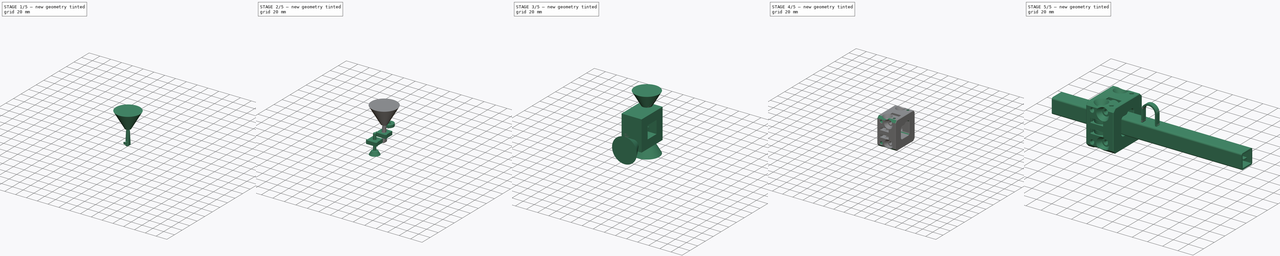
[diagram: build sequence overview — one tinted view per stage of 5, left to right]
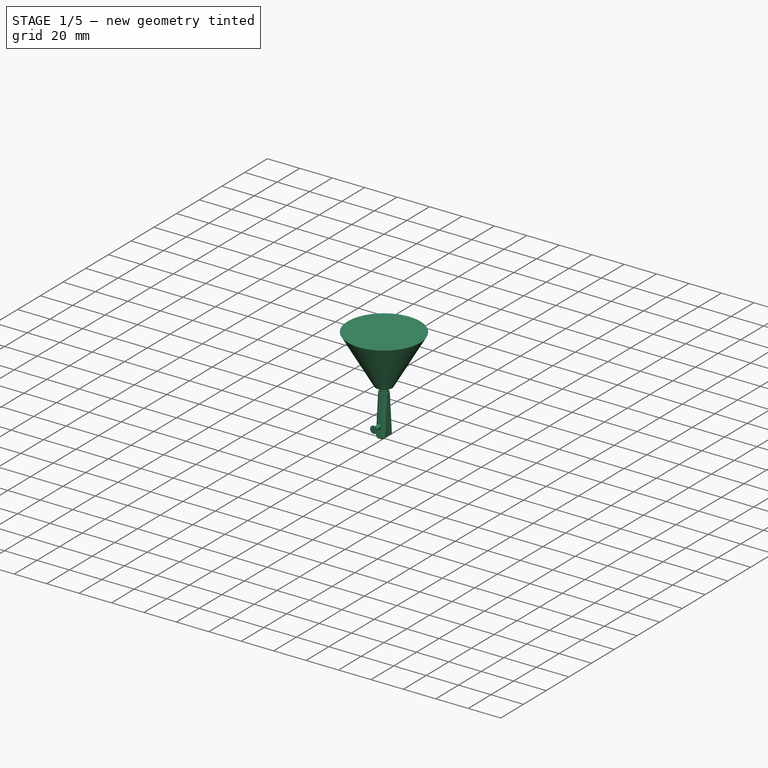
[diagram: stage 1 of 5 — iso view after this stage's code; geometry added in this stage tinted green]
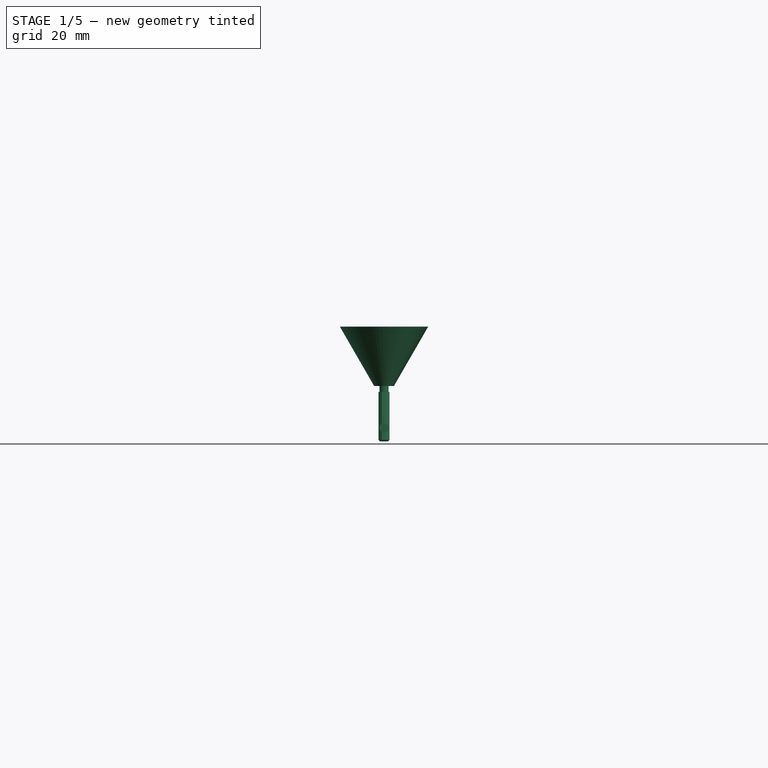
[diagram: stage 1 of 5 — front view after this stage's code; geometry added in this stage tinted green]
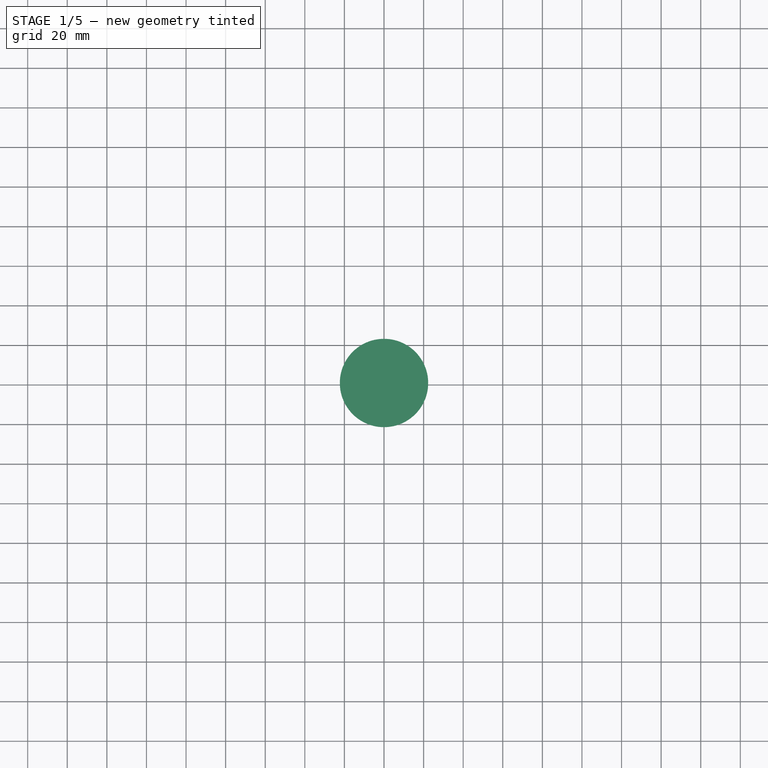
[diagram: stage 1 of 5 — top view after this stage's code; geometry added in this stage tinted green]
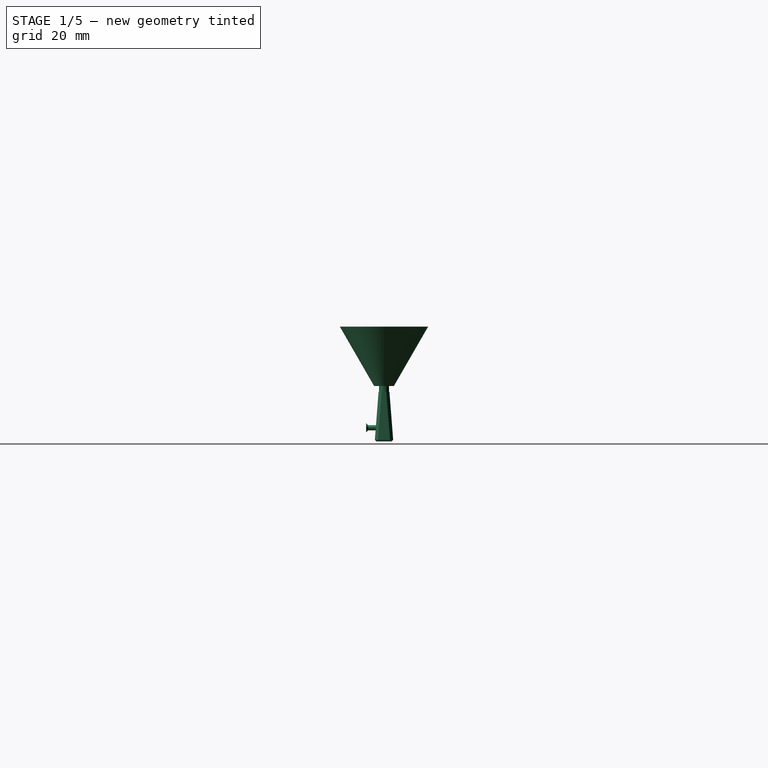
[diagram: stage 1 of 5 — right view after this stage's code; geometry added in this stage tinted green]
FCSTD DOCUMENT  (FreeCAD 1.0R39319 (Git))
Label: Fabricatable-Axis-6.01-20mmx20mm-tube-version-Bearing-ring
License: Creative Commons Attribution-ShareAlike 4.0
LicenseURL: https://creativecommons.org/licenses/by-sa/4.0/
objects: Sketcher::SketchObject×18, Part::FeaturePython×17, PartDesign::Pad×14, PartDesign::Body×10, PartDesign::Chamfer×9, PartDesign::Fillet×4, Part::MultiFuse×3, App::Part×2, PartDesign::Pocket×2, PartDesign::FeatureBase×2, PartDesign::Hole×2, PartDesign::Mirrored×2, App::VarSet×1, PartDesign::Thickness×1, PartDesign::LinearPattern×1, Part::Cut×1
note: 173 computed .brp shape members not serialized (recipe doc carries the construction recipe); baked Part::Feature solids carry a one-line shape summary decoded from their .brp

FEATURE [PartDesign::Pad] Pad004
  Direction = (0,0,1)
  Length = 6
  Length2 = 10
  Midplane = true
  Profile = -> Sketch005
  ReferenceAxis = -> Sketch005 [N_Axis]
  Refine = true
  Suppressed = false
  Type = 0
  expr: Length = VarSet.Bearing_width + VarSet.Bearing_slot_width_margin
FEATURE [Sketcher::SketchObject] Sketch007
  ArcFitTolerance = 1e-06
  AttachmentOffset = pos=(0,0,3) rot=(0,0,1;0rad)
  AttachmentSupport = -> [XY_Plane008]
  FullyConstrained = true
  MakeInternals = false
  MapMode = 5
  Placement = pos=(0,0,3) rot=(0,0,1;0rad)
  expr: .AttachmentOffset.Base.z = Pad004.Length / 2
  expr: Constraints[1] = VarSet.Bearing_od / 1.8
  sketch-geometry (1):
    g0: Circle CenterX=0 CenterY=0 CenterZ=0 NormalX=0 NormalY=0 NormalZ=1 AngleXU=0 Radius=4.44444
  constraints (2):
    c: Coincident(g0,g-1)
    c: Diameter(g0) = 8.88889
FEATURE [PartDesign::Pocket] Pocket001
  BaseFeature = -> Pad004
  Direction = (0,0,-1)
  Length = 0.36
  Length2 = 5
  Profile = -> Sketch007
  ReferenceAxis = -> Sketch007 [N_Axis]
  Refine = true
  Suppressed = false
  Type = 0
  expr: Length = VarSet.Bearing_washer_protrusion
FEATURE [PartDesign::LinearPattern] LinearPattern
  BaseFeature = -> Pocket001
  Direction = -> Z_Axis008
  Length = 5.64
  Mode = 0
  Occurrences = 2
  Offset = 5.64
  Originals = -> [Pocket001]
  Refine = true
  Reversed = true
  Suppressed = false
  TransformMode = 0
  expr: Length = Pad004.Length - Pocket001.Length
FEATURE [PartDesign::Body] Body005  label="Body for boolean - hole maker adjustable"
  AllowCompound = false
  Group = -> [Clone007]
  Origin = -> Origin009
  Tip = -> Clone007
FEATURE [Sketcher::SketchObject] Sketch008
  ArcFitTolerance = 1e-06
  AttachmentSupport = -> [XY_Plane008]
  FullyConstrained = true
  MakeInternals = false
  MapMode = 5
  expr: Constraints[1] = VarSet.Bearing_axle_screw_selftap_diameter
  sketch-geometry (1):
    g0: Circle CenterX=0 CenterY=0 CenterZ=0 NormalX=0 NormalY=0 NormalZ=1 AngleXU=0 Radius=2.35
  constraints (2):
    c: Coincident(g0,g-1)
    c: Diameter(g0) = 4.7
FEATURE [PartDesign::Pad] Pad005
  BaseFeature = -> LinearPattern
  Direction = (0,0,1)
  Length = 14.6
  Length2 = 10
  Profile = -> Sketch008
  ReferenceAxis = -> Sketch008 [N_Axis]
  Refine = true
  Suppressed = false
  Type = 0
  expr: Length = VarSet.Bearing_width / 2 + VarSet.Bearing_distance_from_fillet + VarSet.Tube_fillet_radius + VarSet.Bearing_od + VarSet.Carriage_to_bearing_top_clearance - VarSet.Bearing_axle_screw_head_pocket_depth
FEATURE [PartDesign::Pad] Pad006
  BaseFeature = -> Pad005
  Direction = (0,0,1)
  Length = 13.4
  Length2 = 10
  Profile = -> Sketch008
  ReferenceAxis = -> Sketch008 [N_Axis]
  Refine = true
  Reversed = true
  Suppressed = false
  Type = 0
  expr: Length = VarSet.Bearing_axle_screw_length + 3 mm - Pad005.Length
FEATURE [Sketcher::SketchObject] Sketch013
  ArcFitTolerance = 1e-06
  AttachmentSupport = -> [YZ_Plane011]
  FullyConstrained = true
  MakeInternals = false
  MapMode = 5
  Placement = pos=(0,0,0) rot=(0.57735,0.57735,0.57735;2.0944rad)
  expr: .Constraints.z = Pad005.Length - VarSet.Bearing_axel_screw_oval_hole_depth
  expr: Constraints[12] = VarSet.Bearing_axle_screw_diameter_loose_diamter + VarSet.Tuning_range_bearing
  expr: Constraints[7] = -Pad006.Length
  expr: Constraints[8] = VarSet.Bearing_axle_screw_diameter_loose_diamter
  sketch-geometry (5):
    g0: LineSegment StartX=-2.75 StartY=11.6 StartZ=0 EndX=-4.68966 EndY=-13.4 EndZ=0
    g1: LineSegment StartX=-4.68966 StartY=-13.4 StartZ=0 EndX=4.68966 EndY=-13.4 EndZ=0
    g2: LineSegment StartX=4.68966 StartY=-13.4 StartZ=0 EndX=2.75 EndY=11.6 EndZ=0
    g3: LineSegment StartX=2.75 StartY=11.6 StartZ=0 EndX=-2.75 EndY=11.6 EndZ=0
    g4: LineSegment [constr] StartX=-3.65 StartY=0 StartZ=0 EndX=3.65 EndY=0 EndZ=0
  constraints (14):
    c: Coincident(g0,g1)
    c: Coincident(g1,g2)
    c: Coincident(g2,g3)
    c: Coincident(g3,g0)
    c: Symmetric(g2,g0,g-2)
    c: Symmetric(g0,g1,g-2)
    c: DistanceY(g-1,g2) = 11.6  'z'
    c: DistanceY(g-1,g1) = -13.4
    c: Distance(g3) = 5.5
    c: Distance(g1) = 9.37931
    c: PointOnObject(g4,g-1)
    c: Symmetric(g4,g4,g-2)
    c: Distance(g4) = 7.3
    c: PointOnObject(g4,g0)
FEATURE [PartDesign::Pad] Pad008
  Direction = (1,0,0)
  Length = 5.5
  Length2 = 10
  Midplane = true
  Placement = pos=(0,0,0) rot=(1,1,1;2.0944rad)
  Profile = -> Sketch013
  ReferenceAxis = -> Sketch013 [N_Axis]
  Refine = true
  Suppressed = false
  Type = 0
  expr: Length = VarSet.Bearing_axle_screw_diameter_loose_diamter
FEATURE [PartDesign::Chamfer] Chamfer004
  Angle = 45
  Base = -> Pad008 [Edge4,Edge3,Edge10,Edge9]
  BaseFeature = -> Pad008
  ChamferType = 0
  FlipDirection = false
  Placement = pos=(0,0,0) rot=(1,1,1;2.0944rad)
  Refine = true
  Size = 1.57143
  Size2 = 1
  SupportTransform = false
  Suppressed = false
  UseAllEdges = false
  expr: Size = VarSet.Bearing_axle_screw_diameter_loose_diamter / 3.5
FEATURE [PartDesign::Chamfer] Chamfer005
  Angle = 45
  Base = -> Chamfer004 [Face5]
  BaseFeature = -> Chamfer004
  ChamferType = 0
  FlipDirection = false
  Placement = pos=(0,0,0) rot=(1,1,1;2.0944rad)
  Refine = true
  Size = 0.8
  Size2 = 1
  SupportTransform = false
  Suppressed = false
  UseAllEdges = false
FEATURE [Sketcher::SketchObject] Sketch014
  ArcFitTolerance = 1e-06
  AttachmentOffset = pos=(0,0,11.6) rot=(0,0,1;0rad)
  AttachmentSupport = -> [XY_Plane011]
  FullyConstrained = true
  MakeInternals = false
  MapMode = 5
  Placement = pos=(0,0,11.6) rot=(0,0,1;0rad)
  expr: .AttachmentOffset.Base.z = Sketch013.Constraints.z
  expr: Constraints[5] = VarSet.Bearing_axle_screw_diameter
  expr: Constraints[7] = VarSet.Bearing_axle_screw_diameter_oval_selftap_diameter
  sketch-geometry (5):
    g0: Ellipse CenterX=0 CenterY=0 CenterZ=0 NormalX=0 NormalY=0 NormalZ=1 MajorRadius=2.5 MinorRadius=2.3 AngleXU=-1.5708
    g1: LineSegment [constr] StartX=0 StartY=-2.5 StartZ=0 EndX=0 EndY=2.5 EndZ=0
    g2: LineSegment [constr] StartX=2.3 StartY=0 StartZ=0 EndX=-2.3 EndY=0 EndZ=0
    g3: GeomPoint [constr] X=1e-16 Y=-0.979796 Z=0
    g4: GeomPoint [constr] X=0 Y=0.979796 Z=0
  constraints (5):
    c: InternalAlignment(g1-g4 -> g0) x4
    c: Coincident(g0,g-1)
    c: Distance(g1,g1) = 5
    c: PointOnObject(g2,g-1)
    c: Distance(g2) = 4.6
FEATURE [PartDesign::Pad] Pad009
  BaseFeature = -> Chamfer005
  Direction = (0,0,1)
  Length = 3
  Length2 = 10
  Placement = pos=(0,0,0) rot=(1,1,1;2.0944rad)
  Profile = -> Sketch014
  ReferenceAxis = -> Sketch014 [N_Axis]
  Refine = true
  Suppressed = false
  Type = 0
  expr: Length = VarSet.Bearing_axel_screw_oval_hole_depth
FEATURE [Sketcher::SketchObject] Sketch015
  ArcFitTolerance = 1e-06
  AttachmentOffset = pos=(0,0,14.6) rot=(0,0,1;0rad)
  AttachmentSupport = -> [XY_Plane011]
  FullyConstrained = true
  MakeInternals = false
  MapMode = 5
  Placement = pos=(0,0,14.6) rot=(0,0,1;0rad)
  expr: .AttachmentOffset.Base.z = Sketch013.Constraints.z + VarSet.Bearing_axel_screw_oval_hole_depth
  expr: Constraints[1] = VarSet.Bearing_axle_screw_head_pocket_diamter
  sketch-geometry (1):
    g0: Circle CenterX=0 CenterY=0 CenterZ=0 NormalX=0 NormalY=0 NormalZ=1 AngleXU=0 Radius=5
  constraints (2):
    c: Coincident(g0,g-1)
    c: Diameter(g0) = 10
FEATURE [PartDesign::Pad] Pad010
  BaseFeature = -> Pad009
  Direction = (0,0,1)
  Length = 30
  Length2 = 10
  Placement = pos=(0,0,0) rot=(1,1,1;2.0944rad)
  Profile = -> Sketch015
  ReferenceAxis = -> Sketch015 [N_Axis]
  Refine = true
  Suppressed = false
  TaperAngle = 30
  Type = 0
  expr: Length = VarSet.Bearing_axle_screw_head_pocket_depth * 5
FEATURE [Sketcher::SketchObject] Sketch016
  ArcFitTolerance = 1e-06
  AttachmentSupport = -> [XZ_Plane011]
  FullyConstrained = true
  MakeInternals = false
  MapMode = 5
  Placement = pos=(0,0,0) rot=(1,0,0;1.5708rad)
  expr: .Constraints.z = -VarSet.Bearing_width / 2 - VarSet.Bearing_slot_width_margin / 2 - VarSet.Bearing_tuning_screw_selftap_diameter / 2 - 2.2 mm
  expr: Constraints[1] = VarSet.Bearing_tuning_screw_selftap_diameter
  sketch-geometry (1):
    g0: Circle CenterX=0 CenterY=-6.5 CenterZ=0 NormalX=0 NormalY=0 NormalZ=1 AngleXU=0 Radius=1.3
  constraints (3):
    c: PointOnObject(g0,g-2)
    c: Diameter(g0) = 2.6
    c: DistanceY(g-1,g0) = -6.5  'z'
FEATURE [PartDesign::Pad] Pad011
  BaseFeature = -> Pad010
  Direction = (0,-1,2e-16)
  Length = 8
  Length2 = 10
  Placement = pos=(0,0,0) rot=(1,1,1;2.0944rad)
  Profile = -> Sketch016
  ReferenceAxis = -> Sketch016 [N_Axis]
  Refine = true
  Suppressed = false
  Type = 0
  expr: Length = VarSet.Bearing_od / 2 + VarSet.Carriage_to_bearing_top_clearance - 1 mm
FEATURE [Sketcher::SketchObject] Sketch017
  ArcFitTolerance = 1e-06
  AttachmentOffset = pos=(0,0,8) rot=(0,0,1;0rad)
  AttachmentSupport = -> [XZ_Plane011]
  FullyConstrained = true
  MakeInternals = false
  MapMode = 5
  Placement = pos=(0,-8,1.8e-15) rot=(1,0,0;1.5708rad)
  expr: .AttachmentOffset.Base.z = VarSet.Bearing_od / 2 + VarSet.Carriage_to_bearing_top_clearance - 1 mm
  expr: Constraints[0] = VarSet.Bearing_tuning_screw_selftap_diameter
  expr: Constraints[1] = Sketch016.Constraints.z
  sketch-geometry (1):
    g0: Circle CenterX=0 CenterY=-6.5 CenterZ=0 NormalX=0 NormalY=0 NormalZ=1 AngleXU=0 Radius=1.3
  constraints (3):
    c: Diameter(g0) = 2.6
    c: DistanceY(g-1,g0) = -6.5
    c: PointOnObject(g0,g-2)
FEATURE [PartDesign::Pad] Pad012
  BaseFeature = -> Pad011
  Direction = (0,-1,2e-16)
  Length = 1
  Length2 = 10
  Placement = pos=(0,0,0) rot=(1,1,1;2.0944rad)
  Profile = -> Sketch017
  ReferenceAxis = -> Sketch017 [N_Axis]
  Refine = true
  Suppressed = false
  TaperAngle = 45
  Type = 0
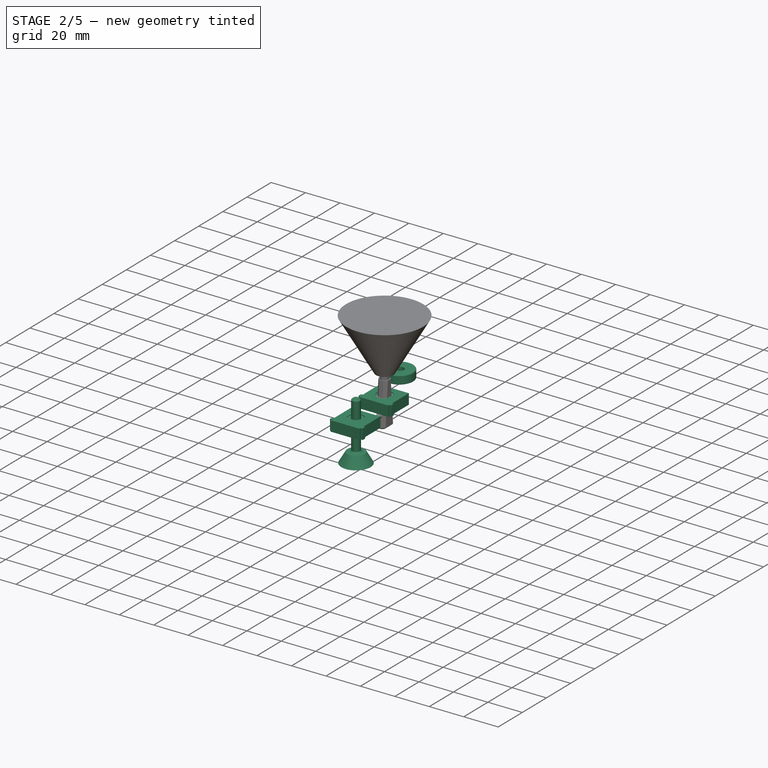
[diagram: stage 2 of 5 — iso view after this stage's code; geometry added in this stage tinted green]
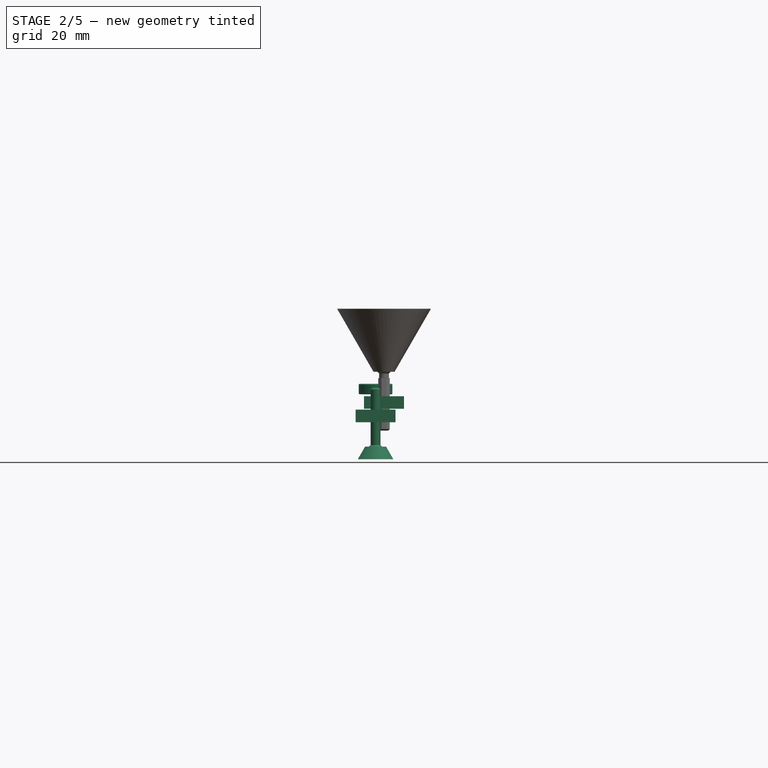
[diagram: stage 2 of 5 — front view after this stage's code; geometry added in this stage tinted green]
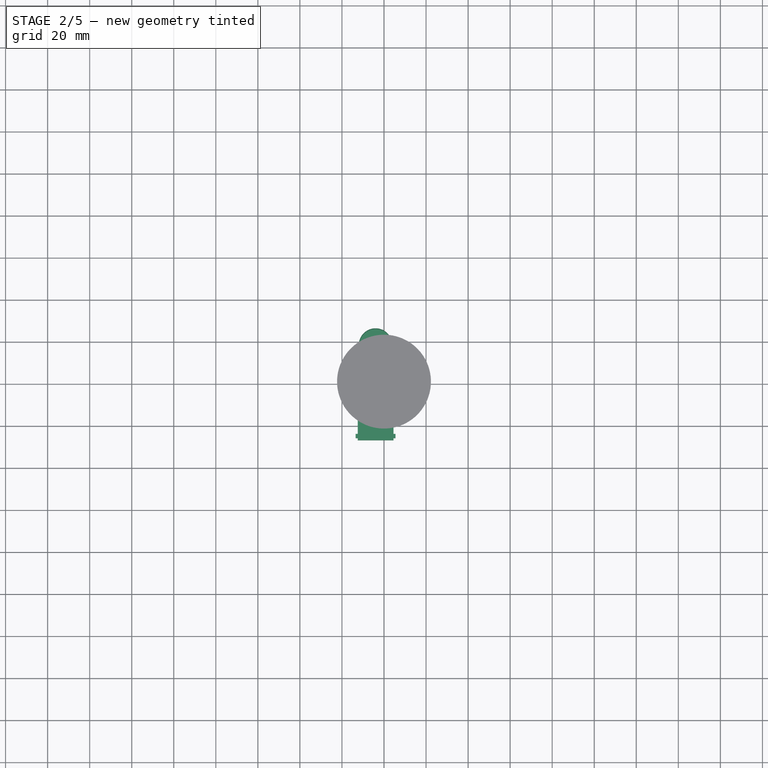
[diagram: stage 2 of 5 — top view after this stage's code; geometry added in this stage tinted green]
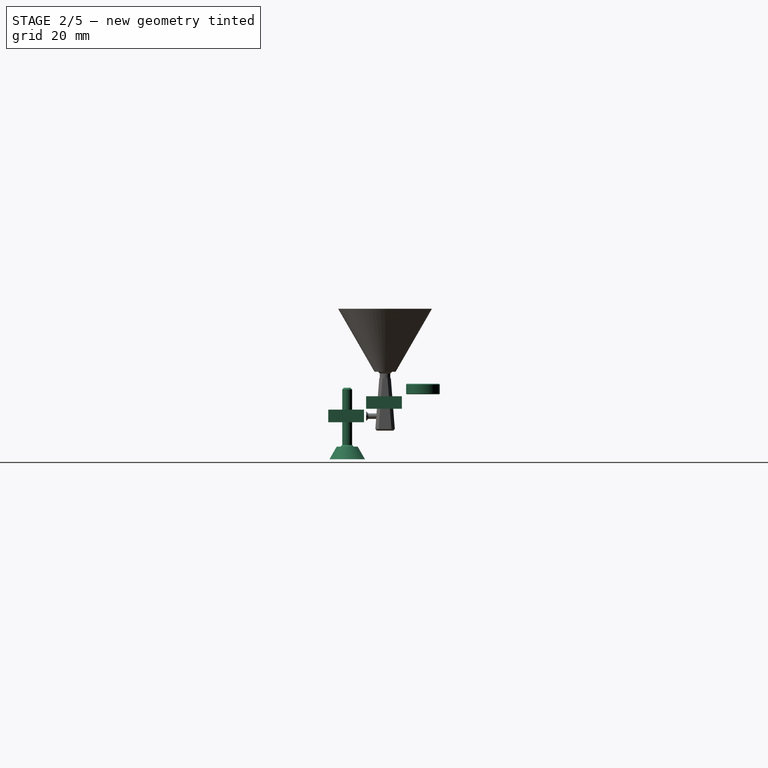
[diagram: stage 2 of 5 — right view after this stage's code; geometry added in this stage tinted green]
FEATURE [PartDesign::Body] Body  label="Steel tube"
  AllowCompound = false
  Group = -> [Sketch,Pad,Fillet,Thickness]
  Origin = -> Origin
  Tip = -> Thickness
FEATURE [Sketcher::SketchObject] Sketch002
  ArcFitTolerance = 1e-06
  AttachmentSupport = -> [XY_Plane001]
  FullyConstrained = true
  MakeInternals = false
  MapMode = 5
  expr: Constraints[2] = VarSet.Bearing_od
  expr: Constraints[3] = VarSet.Bearing_id
  sketch-geometry (2):
    g0: Circle CenterX=0 CenterY=0 CenterZ=0 NormalX=0 NormalY=0 NormalZ=1 AngleXU=0 Radius=8
    g1: Circle CenterX=0 CenterY=0 CenterZ=0 NormalX=0 NormalY=0 NormalZ=1 AngleXU=0 Radius=2.5
  constraints (4):
    c: Coincident(g0,g-1)
    c: Coincident(g1,g0)
    c: Diameter(g0) = 16
    c: Diameter(g1) = 5
FEATURE [PartDesign::Pad] Pad001
  Direction = (0,0,1)
  Length = 5
  Length2 = 10
  Midplane = true
  Profile = -> Sketch002
  ReferenceAxis = -> Sketch002 [N_Axis]
  Refine = true
  Suppressed = false
  Type = 0
  expr: Length = VarSet.Bearing_width
FEATURE [Sketcher::SketchObject] Sketch003
  ArcFitTolerance = 1e-06
  AttachmentSupport = -> [YZ_Plane006]
  FullyConstrained = true
  MakeInternals = false
  MapMode = 5
  Placement = pos=(0,0,0) rot=(0.57735,0.57735,0.57735;2.0944rad)
  expr: .Constraints.y = VarSet.Tube_width / 2 + VarSet.Carriage_to_tube_clearance
  expr: .Constraints.z = VarSet.Tube_height / 2 + VarSet.Carriage_to_tube_clearance
  expr: Constraints[22] = VarSet.Tube_height / 2 + VarSet.Carriage_to_bearing_top_clearance + VarSet.Bearing_od
  expr: Constraints[23] = VarSet.Tube_width / 2 + VarSet.Carriage_to_bearing_top_clearance + VarSet.Bearing_od
  sketch-geometry (10):
    g0: LineSegment StartX=11.5 StartY=-11.5 StartZ=0 EndX=11.5 EndY=11.5 EndZ=0
    g1: LineSegment StartX=11.5 StartY=11.5 StartZ=0 EndX=-11.5 EndY=11.5 EndZ=0
    g2: LineSegment StartX=-11.5 StartY=11.5 StartZ=0 EndX=-11.5 EndY=-11.5 EndZ=0
    g3: LineSegment StartX=-11.5 StartY=-11.5 StartZ=0 EndX=11.5 EndY=-11.5 EndZ=0
    g4: GeomPoint [constr] X=0 Y=0 Z=0
    g5: LineSegment StartX=27 StartY=-27 StartZ=0 EndX=27 EndY=27 EndZ=0
    g6: LineSegment StartX=27 StartY=27 StartZ=0 EndX=-27 EndY=27 EndZ=0
    g7: LineSegment StartX=-27 StartY=27 StartZ=0 EndX=-27 EndY=-27 EndZ=0
    g8: LineSegment StartX=-27 StartY=-27 StartZ=0 EndX=27 EndY=-27 EndZ=0
    g9: GeomPoint [constr] X=0 Y=0 Z=0
  constraints (24):
    c: Coincident(g0,g1)
    c: Coincident(g1,g2)
    c: Coincident(g2,g3)
    c: Coincident(g3,g0)
    c: Vertical(g0)
    c: Vertical(g2)
    c: Horizontal(g1)
    c: Horizontal(g3)
    c: Symmetric(g2,g0,g4)
    c: Coincident(g4,g-1)
    c: Coincident(g5,g6)
    c: Coincident(g6,g7)
    c: Coincident(g7,g8)
    c: Coincident(g8,g5)
    c: Vertical(g5)
    c: Vertical(g7)
    c: Horizontal(g6)
    c: Horizontal(g8)
    c: Symmetric(g7,g5,g9)
    c: Coincident(g9,g4)
    c: DistanceY(g-1,g0) = 11.5  'z'
    c: DistanceX(g-2,g0) = 11.5  'y'
    c: DistanceY(g-1,g5) = 27
    c: DistanceX(g-2,g5) = 27
FEATURE [PartDesign::Fillet] Fillet001
  Base = -> Pad001 [Face3,Face4]
  BaseFeature = -> Pad001
  Radius = 0.5
  Refine = true
  SupportTransform = false
  Suppressed = false
  UseAllEdges = false
FEATURE [PartDesign::Body] Body001  label="Bearing"
  AllowCompound = false
  Group = -> [Sketch002,Pad001,Fillet001]
  Origin = -> Origin001
  Tip = -> Fillet001
FEATURE [Part::FeaturePython] Clone  label="Bearing001"  # Draft clone (typed FeaturePython)
  AttacherType = Attacher::AttachEngine3D
  Fuse = false
  Objects = -> [Body001]
  Placement = pos=(-4,-18,-6.4) rot=(0,0,1;0rad)
  Scale = (1,1,1)
  expr: .Placement.Base.x = -VarSet.Bearing_axle_screw_diameter / 2 - VarSet.Screw_offset / 2
  expr: .Placement.Base.y = -VarSet.Tube_width / 2 - VarSet.Bearing_od / 2
  expr: .Placement.Base.z = -VarSet.Tube_height / 2 + VarSet.Tube_fillet_radius + VarSet.Bearing_width / 2 + VarSet.Bearing_distance_from_fillet
FEATURE [Part::FeaturePython] Clone003  label="Bearing004"  # Draft clone (typed FeaturePython)
  AttacherType = Attacher::AttachEngine3D
  Fuse = false
  Objects = -> [Body001]
  Placement = pos=(-4,18,6.4) rot=(0,0,1;0rad)
  Scale = (1,1,1)
  expr: .Placement.Base.x = <<Bearing001>>.Placement.Base.x
  expr: .Placement.Base.y = -<<Bearing001>>.Placement.Base.y
  expr: .Placement.Base.z = -<<Bearing001>>.Placement.Base.z
FEATURE [PartDesign::FeatureBase] Clone007
  BaseFeature = -> LinearPattern
  Suppressed = false
FEATURE [Sketcher::SketchObject] Sketch009
  ArcFitTolerance = 1e-06
  AttachmentSupport = -> [Pad006]
  FullyConstrained = true
  MakeInternals = false
  MapMode = 5
  Placement = pos=(0,0,14.6) rot=(0,0,1;0rad)
  expr: Constraints[1] = VarSet.Bearing_axle_screw_head_pocket_diamter
  sketch-geometry (1):
    g0: Circle CenterX=0 CenterY=0 CenterZ=0 NormalX=0 NormalY=0 NormalZ=1 AngleXU=0 Radius=5
  constraints (2):
    c: Coincident(g0,g-1)
    c: Diameter(g0) = 10
FEATURE [PartDesign::Pad] Pad007
  BaseFeature = -> Pad006
  Direction = (0,0,1)
  Length = 6
  Length2 = 10
  Profile = -> Sketch009
  ReferenceAxis = -> Sketch009 [N_Axis]
  Refine = true
  Suppressed = false
  TaperAngle = 30
  Type = 0
  expr: Length = VarSet.Bearing_axle_screw_head_pocket_depth
FEATURE [PartDesign::Chamfer] Chamfer002
  Angle = 45
  Base = -> Pad007 [Edge46,Edge48]
  BaseFeature = -> Pad007
  ChamferType = 0
  FlipDirection = false
  Refine = true
  Size = 0.8
  Size2 = 1
  SupportTransform = false
  Suppressed = false
  UseAllEdges = false
FEATURE [PartDesign::Chamfer] Chamfer003
  Angle = 45
  Base = -> Chamfer002 [Edge51,Edge3]
  BaseFeature = -> Chamfer002
  ChamferType = 0
  FlipDirection = false
  Refine = true
  Size = 0.3
  Size2 = 1
  SupportTransform = false
  Suppressed = false
  UseAllEdges = false
FEATURE [Part::FeaturePython] Clone012  label="Clone - hole maker non adjustable - for bearing001"  # Draft clone (typed FeaturePython)
  AttacherType = Attacher::AttachEngine3D
  Fuse = false
  Objects = -> [Body004]
  Placement = pos=(-4,-18,-6.4) rot=(0,1,0;3.14159rad)
  Scale = (1,1,1)
  expr: .Placement.Base.x = <<Bearing001>>.Placement.Base.x
  expr: .Placement.Base.y = <<Bearing001>>.Placement.Base.y
  expr: .Placement.Base.z = <<Bearing001>>.Placement.Base.z
FEATURE [PartDesign::Chamfer] Chamfer006
  Angle = 45
  Base = -> Pad012 [Edge56]
  BaseFeature = -> Pad012
  ChamferType = 0
  FlipDirection = false
  Placement = pos=(0,0,0) rot=(1,1,1;2.0944rad)
  Refine = true
  Size = 0.8
  Size2 = 1
  SupportTransform = false
  Suppressed = false
  UseAllEdges = false
FEATURE [PartDesign::Body] Body007  label="Body for boolean - rotation hole"
  AllowCompound = false
  Group = -> [Sketch013,Pad008,Chamfer004,Chamfer005,Sketch014,Pad009,Sketch015,Pad010,Sketch016,Pad011,Sketch017,Pad012,Chamfer006]
  Origin = -> Origin011
  Tip = -> Chamfer006
FEATURE [Part::MultiFuse] Fusion001  label="Fusion - hole maker adjustable"
  Refine = true
  Shapes = -> [Body005,Body007]
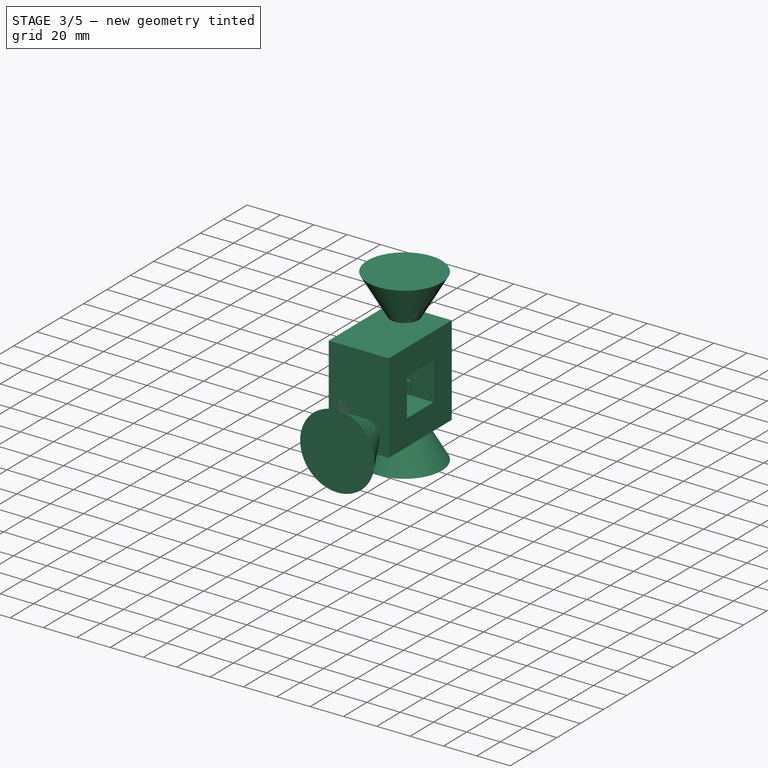
[diagram: stage 3 of 5 — iso view after this stage's code; geometry added in this stage tinted green]
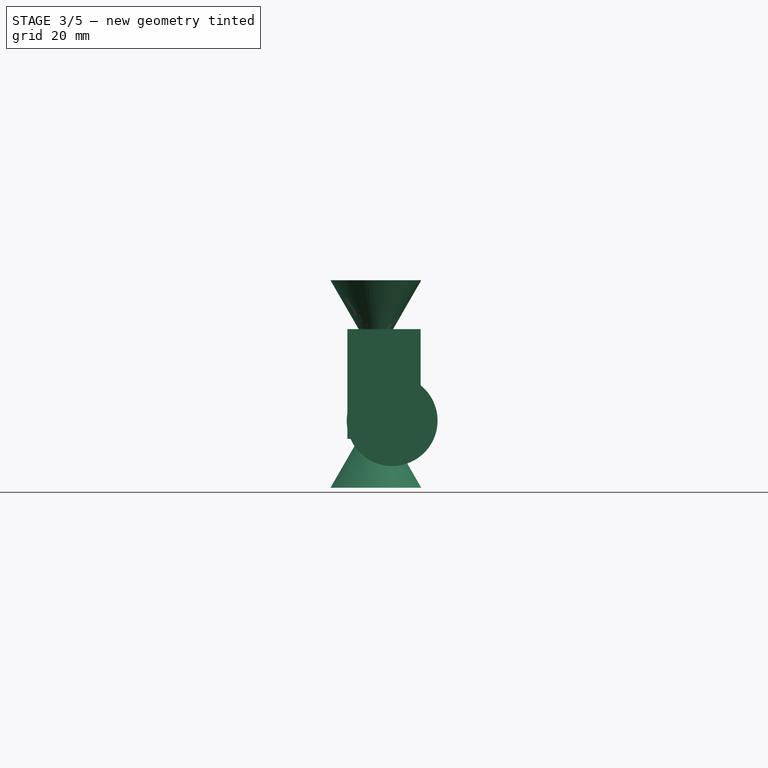
[diagram: stage 3 of 5 — front view after this stage's code; geometry added in this stage tinted green]
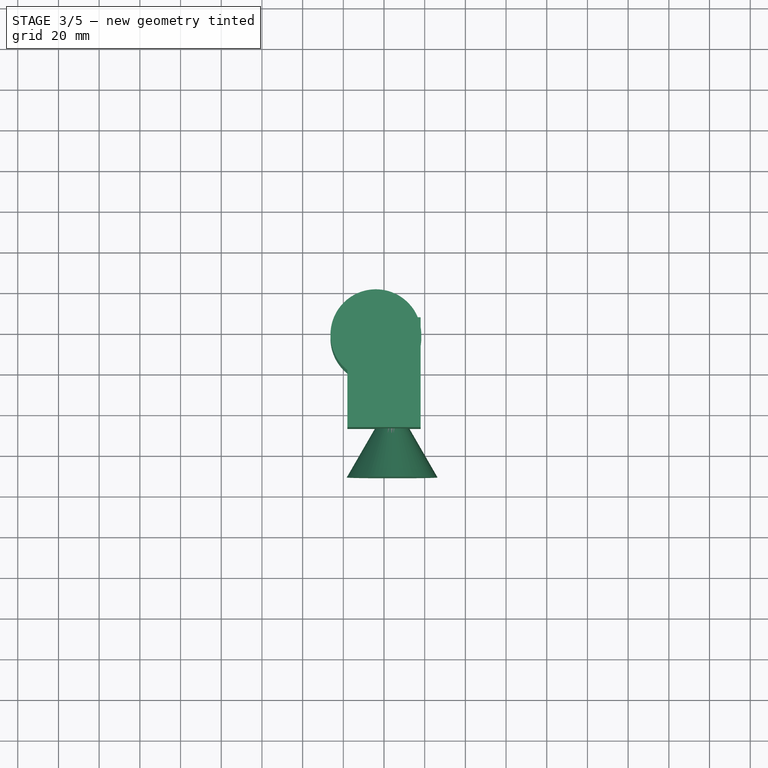
[diagram: stage 3 of 5 — top view after this stage's code; geometry added in this stage tinted green]
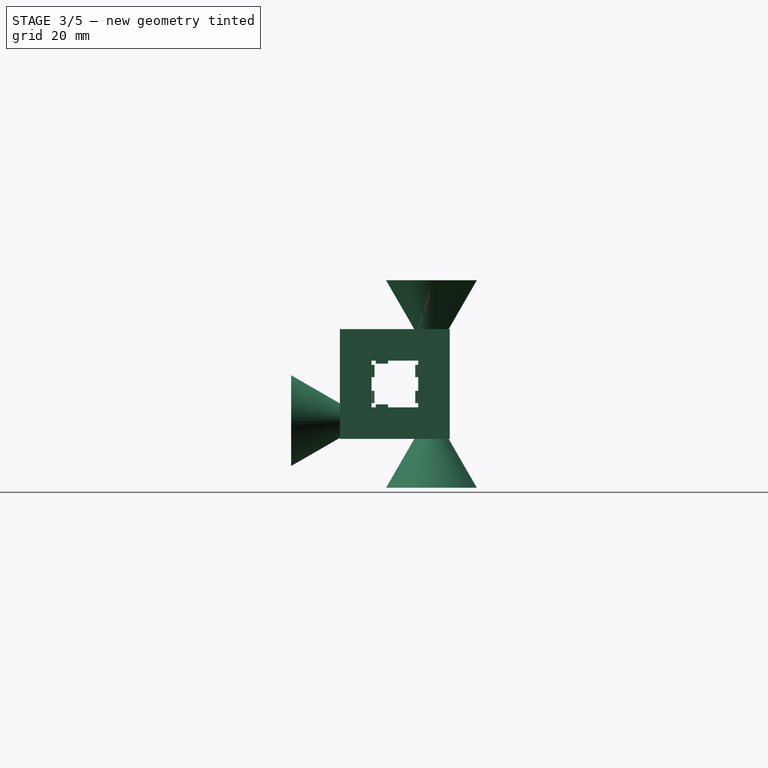
[diagram: stage 3 of 5 — right view after this stage's code; geometry added in this stage tinted green]
FEATURE [Part::FeaturePython] Clone001  label="Bearing002"  # Draft clone (typed FeaturePython)
  AttacherType = Attacher::AttachEngine3D
  Fuse = false
  Objects = -> [Body001]
  Placement = pos=(-4,-18,6.4) rot=(0,0,1;0rad)
  Scale = (1,1,1)
  expr: .Placement.Base.x = <<Bearing001>>.Placement.Base.x
  expr: .Placement.Base.y = <<Bearing001>>.Placement.Base.y
  expr: .Placement.Base.z = -<<Bearing001>>.Placement.Base.z
FEATURE [Part::FeaturePython] Clone002  label="Bearing003"  # Draft clone (typed FeaturePython)
  AttacherType = Attacher::AttachEngine3D
  Fuse = false
  Objects = -> [Body001]
  Placement = pos=(-4,18,-6.4) rot=(0,0,1;0rad)
  Scale = (1,1,1)
  expr: .Placement.Base.x = <<Bearing001>>.Placement.Base.x
  expr: .Placement.Base.y = -<<Bearing001>>.Placement.Base.y
  expr: .Placement.Base.z = <<Bearing001>>.Placement.Base.z
FEATURE [Part::FeaturePython] Clone004  label="Bearing005"  # Draft clone (typed FeaturePython)
  AttacherType = Attacher::AttachEngine3D
  Fuse = false
  Objects = -> [Body001]
  Placement = pos=(4,-6.4,-18) rot=(1,0,0;1.5708rad)
  Scale = (1,1,1)
  expr: .Placement.Base.x = +VarSet.Bearing_axle_screw_diameter / 2 + VarSet.Screw_offset / 2
  expr: .Placement.Base.y = -VarSet.Tube_width / 2 + VarSet.Tube_fillet_radius + VarSet.Bearing_width / 2 + VarSet.Bearing_distance_from_fillet
  expr: .Placement.Base.z = -VarSet.Tube_height / 2 - VarSet.Bearing_od / 2
FEATURE [Part::FeaturePython] Clone005  label="Bearing006"  # Draft clone (typed FeaturePython)
  AttacherType = Attacher::AttachEngine3D
  Fuse = false
  Objects = -> [Body001]
  Placement = pos=(4,-6.4,18) rot=(1,0,0;4.71239rad)
  Scale = (1,1,1)
  expr: .Placement.Base.x = <<Bearing005>>.Placement.Base.x
  expr: .Placement.Base.y = -VarSet.Tube_width / 2 + VarSet.Tube_fillet_radius + VarSet.Bearing_width / 2 + VarSet.Bearing_distance_from_fillet
  expr: .Placement.Base.z = -<<Bearing005>>.Placement.Base.z
FEATURE [App::Part] Part001  label="Bearings"
  Group = -> [Body001,Clone,Clone001,Clone002,Clone003,Clone004,Clone005]
  Origin = -> Origin005
FEATURE [PartDesign::Pad] Pad002
  Direction = (1,0,0)
  Length = 36
  Length2 = 10
  Midplane = true
  Placement = pos=(0,0,0) rot=(1,1,1;2.0944rad)
  Profile = -> Sketch003
  ReferenceAxis = -> Sketch003 [N_Axis]
  Refine = true
  Suppressed = false
  Type = 0
  expr: Length = VarSet.Bearing_axle_screw_diameter + VarSet.Screw_offset + VarSet.Bearing_od + VarSet.Bearing_distance_from_edge * 2
FEATURE [PartDesign::Body] Body004  label="Body - hole maker non adjustable"
  AllowCompound = false
  Group = -> [Sketch005,Pad004,Sketch007,Pocket001,LinearPattern,Sketch008,Pad005,Pad006,Sketch009,Pad007,Chamfer002,Chamfer003]
  Origin = -> Origin008
  Tip = -> Chamfer003
FEATURE [Part::FeaturePython] Clone006  label="Clone - hole maker non adjustable - for bearing002"  # Draft clone (typed FeaturePython)
  AttacherType = Attacher::AttachEngine3D
  Fuse = false
  Objects = -> [Body004]
  Placement = pos=(-4,-18,6.4) rot=(0,0,1;0rad)
  Scale = (1,1,1)
  expr: .Placement.Base.x = <<Bearing002>>.Placement.Base.x
  expr: .Placement.Base.y = <<Bearing002>>.Placement.Base.y
  expr: .Placement.Base.z = <<Bearing002>>.Placement.Base.z
FEATURE [Part::FeaturePython] Clone008  label="Clone - hole maker non adjustable - for bearing006"  # Draft clone (typed FeaturePython)
  AttacherType = Attacher::AttachEngine3D
  Fuse = false
  Objects = -> [Body004]
  Placement = pos=(4,-6.4,18) rot=(0,-0.707107,0.707107;3.14159rad)
  Scale = (1,1,1)
  expr: .Placement.Base.x = <<Bearing006>>.Placement.Base.x
  expr: .Placement.Base.y = <<Bearing006>>.Placement.Base.y
  expr: .Placement.Base.z = <<Bearing006>>.Placement.Base.z
FEATURE [Part::FeaturePython] Clone009  label="Clone - Hole maker adjustable - for bearing003"  # Draft clone (typed FeaturePython)
  AttacherType = Attacher::AttachEngine3D
  Fuse = false
  Objects = -> [Fusion001]
  Placement = pos=(-4,18,-6.4) rot=(1,0,0;3.14159rad)
  Scale = (1,1,1)
  expr: .Placement.Base.x = <<Bearing003>>.Placement.Base.x
  expr: .Placement.Base.y = <<Bearing003>>.Placement.Base.y
  expr: .Placement.Base.z = <<Bearing003>>.Placement.Base.z
FEATURE [Part::FeaturePython] Clone010  label="Clone - Hole maker adjustable - for bearing004"  # Draft clone (typed FeaturePython)
  AttacherType = Attacher::AttachEngine3D
  Fuse = false
  Objects = -> [Fusion001]
  Placement = pos=(-4,18,6.4) rot=(0,0,1;3.14159rad)
  Scale = (1,1,1)
  expr: .Placement.Base.x = <<Bearing004>>.Placement.Base.x
  expr: .Placement.Base.y = <<Bearing004>>.Placement.Base.y
  expr: .Placement.Base.z = <<Bearing004>>.Placement.Base.z
FEATURE [Part::FeaturePython] Clone011  label="Clone - Hole maker adjustable - for bearing005"  # Draft clone (typed FeaturePython)
  AttacherType = Attacher::AttachEngine3D
  Fuse = false
  Objects = -> [Fusion001]
  Placement = pos=(4,-6.4,-18) rot=(1,0,0;1.5708rad)
  Scale = (1,1,1)
  expr: .Placement.Base.x = <<Bearing005>>.Placement.Base.x
  expr: .Placement.Base.y = <<Bearing005>>.Placement.Base.y
  expr: .Placement.Base.z = <<Bearing005>>.Placement.Base.z
FEATURE [PartDesign::Body] Body002  label="Carriage body"
  AllowCompound = false
  Group = -> [Sketch003,Pad002,Sketch006,Pocket,Fillet006,Fillet007,Chamfer,Chamfer012]
  Origin = -> Origin006
  Tip = -> Chamfer012
FEATURE [Part::MultiFuse] Fusion
  Refine = true
  Shapes = -> [Clone006,Clone010,Clone009,Clone012]
FEATURE [Part::MultiFuse] Fusion002
  Refine = true
  Shapes = -> [Clone008,Clone011,Fusion]
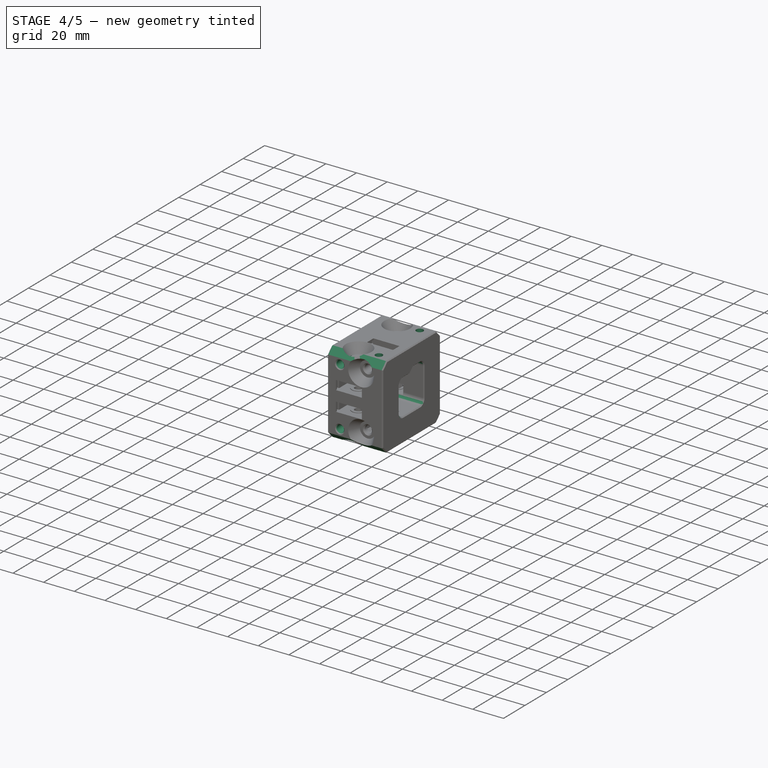
[diagram: stage 4 of 5 — iso view after this stage's code; geometry added in this stage tinted green]
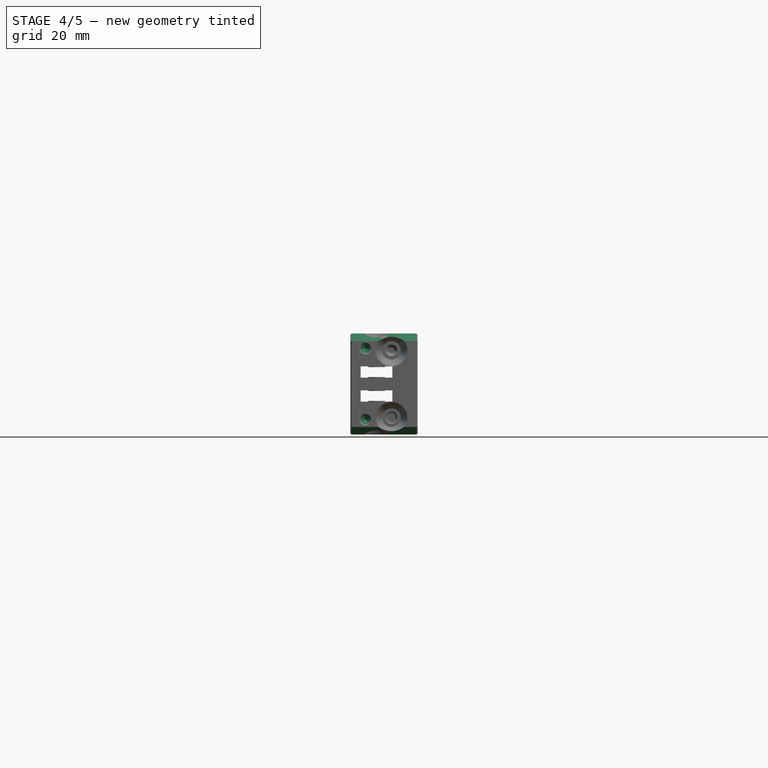
[diagram: stage 4 of 5 — front view after this stage's code; geometry added in this stage tinted green]
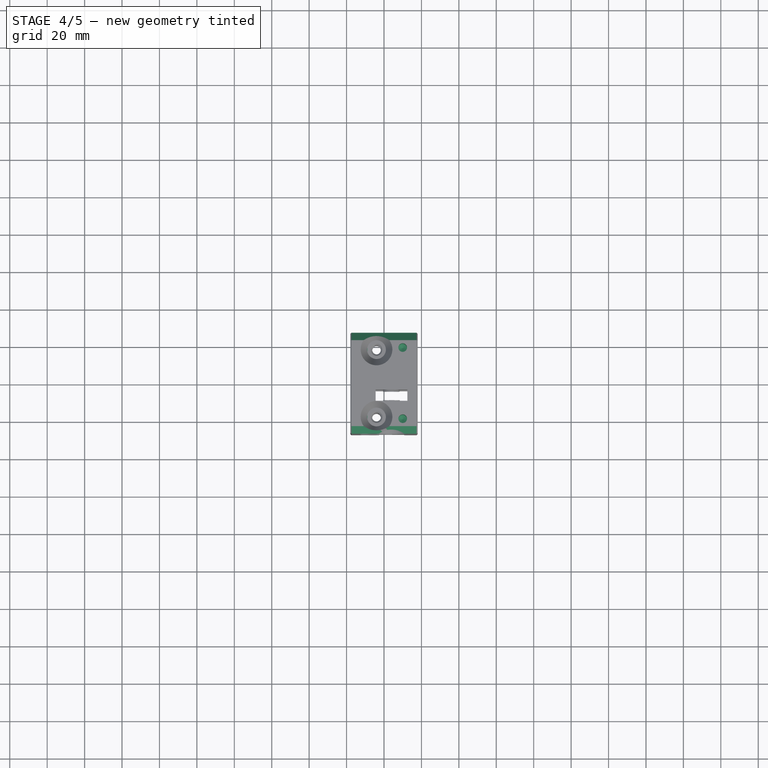
[diagram: stage 4 of 5 — top view after this stage's code; geometry added in this stage tinted green]
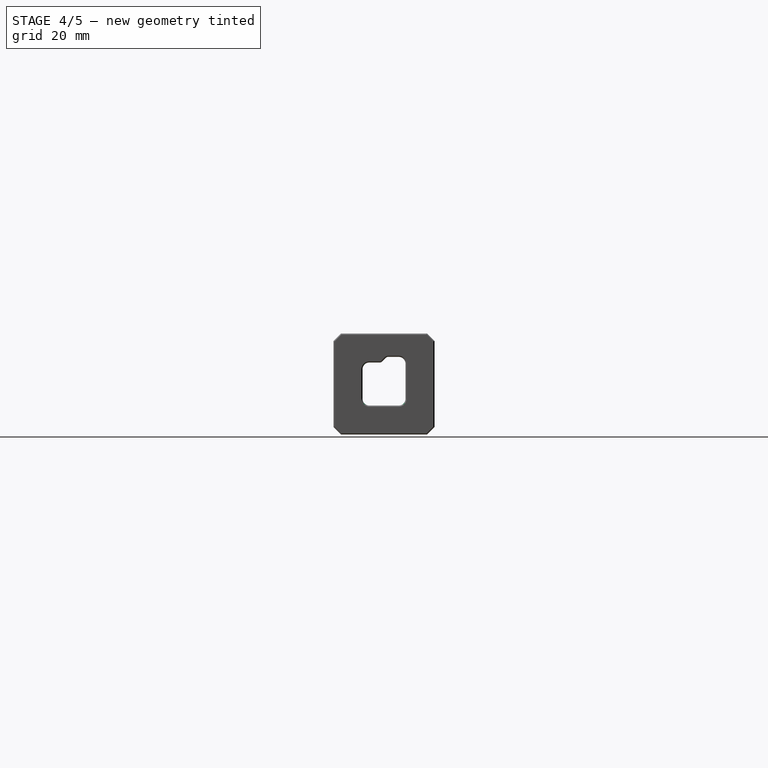
[diagram: stage 4 of 5 — right view after this stage's code; geometry added in this stage tinted green]
FEATURE [Sketcher::SketchObject] Sketch005
  ArcFitTolerance = 1e-06
  AttachmentSupport = -> [XY_Plane008]
  FullyConstrained = true
  MakeInternals = false
  MapMode = 5
  expr: Constraints[11] = -VarSet.Bearing_od / 2 - VarSet.Carriage_to_bearing_top_clearance
  expr: Constraints[31] = VarSet.Bearing_slot_width_margin + VarSet.Bearing_od + 2 mm
  expr: Constraints[32] = -VarSet.Bearing_od / 2 - VarSet.Carriage_to_bearing_top_clearance + 1 mm
  expr: Constraints[33] = -VarSet.Bearing_od / 2 - VarSet.Carriage_to_bearing_top_clearance + 3 mm
  expr: Constraints[8] = VarSet.Bearing_slot_width_margin + VarSet.Bearing_od
  expr: Constraints[9] = VarSet.Bearing_od / 2
  sketch-geometry (13):
    g0: LineSegment StartX=8.5 StartY=-9 StartZ=0 EndX=8.5 EndY=8 EndZ=0
    g1: LineSegment StartX=8.5 StartY=8 StartZ=0 EndX=-8.5 EndY=8 EndZ=0
    g2: LineSegment StartX=-8.5 StartY=8 StartZ=0 EndX=-8.5 EndY=-9 EndZ=0
    g3: LineSegment StartX=-8.5 StartY=-9 StartZ=0 EndX=8.5 EndY=-9 EndZ=0
    g4: GeomPoint [constr] X=0 Y=0 Z=0
    g5: LineSegment StartX=8.5 StartY=-8 StartZ=0 EndX=9.5 EndY=-8 EndZ=0
    g6: LineSegment StartX=9.5 StartY=-8 StartZ=0 EndX=9.5 EndY=-6 EndZ=0
    g7: LineSegment StartX=9.5 StartY=-6 StartZ=0 EndX=8.5 EndY=-6 EndZ=0
    g8: LineSegment StartX=8.5 StartY=-6 StartZ=0 EndX=8.5 EndY=-8 EndZ=0
    g9: LineSegment StartX=-8.5 StartY=-6 StartZ=0 EndX=-9.5 EndY=-6 EndZ=0
    g10: LineSegment StartX=-9.5 StartY=-6 StartZ=0 EndX=-9.5 EndY=-8 EndZ=0
    g11: LineSegment StartX=-9.5 StartY=-8 StartZ=0 EndX=-8.5 EndY=-8 EndZ=0
    g12: LineSegment StartX=-8.5 StartY=-8 StartZ=0 EndX=-8.5 EndY=-6 EndZ=0
  constraints (34):
    c: Coincident(g0,g1)
    c: Coincident(g1,g2)
    c: Coincident(g2,g3)
    c: Coincident(g3,g0)
    c: Vertical(g0)
    c: Vertical(g2)
    c: Horizontal(g1)
    c: Coincident(g4,g-1)
    c: Distance(g3) = 17
    c: DistanceY(g-1,g0) = 8
    c: Symmetric(g0,g2,g-2)
    c: DistanceY(g-1,g0) = -9
    c: Coincident(g5,g6)
    c: Coincident(g6,g7)
    c: Coincident(g7,g8)
    c: Coincident(g8,g5)
    c: Horizontal(g5)
    c: Horizontal(g7)
    c: Vertical(g6)
    c: Vertical(g8)
    c: PointOnObject(g5,g0)
    c: Coincident(g9,g10)
    c: Coincident(g10,g11)
    c: Coincident(g11,g12)
    c: Coincident(g12,g9)
    c: Horizontal(g9)
    c: Horizontal(g11)
    c: Vertical(g10)
    c: Vertical(g12)
    c: Symmetric(g9,g7,g-2)
    c: Symmetric(g10,g5,g-2)
    c: Distance(g5,g10) = 19
    c: DistanceY(g-1,g5) = -8
    c: DistanceY(g-1,g6) = -6
FEATURE [Sketcher::SketchObject] Sketch006
  ArcFitTolerance = 1e-06
  AttachmentSupport = -> [YZ_Plane006]
  FullyConstrained = true
  MakeInternals = false
  MapMode = 5
  Placement = pos=(0,0,0) rot=(0.57735,0.57735,0.57735;2.0944rad)
  expr: Constraints[10] = Sketch003.Constraints.y - VarSet.Drive_chain_slot_width
  expr: Constraints[7] = Sketch003.Constraints.y
  expr: Constraints[8] = Sketch003.Constraints.z
  expr: Constraints[9] = VarSet.Tube_height / 2 + VarSet.Drive_chain_slot_height
  sketch-geometry (4):
    g0: LineSegment StartX=-1.5 StartY=11.5 StartZ=0 EndX=11.5 EndY=11.5 EndZ=0
    g1: LineSegment StartX=11.5 StartY=11.5 StartZ=0 EndX=11.5 EndY=14.5 EndZ=0
    g2: LineSegment StartX=11.5 StartY=14.5 StartZ=0 EndX=1.5 EndY=14.5 EndZ=0
    g3: LineSegment StartX=1.5 StartY=14.5 StartZ=0 EndX=-1.5 EndY=11.5 EndZ=0
  constraints (12):
    c: Coincident(g0,g1)
    c: Coincident(g1,g2)
    c: Coincident(g2,g3)
    c: Coincident(g3,g0)
    c: Horizontal(g0)
    c: Horizontal(g2)
    c: Vertical(g1)
    c: DistanceX(g-2,g0) = 11.5
    c: DistanceY(g-1,g0) = 11.5
    c: DistanceY(g-1,g1) = 14.5
    c: DistanceX(g-2,g2) = 1.5
    c: Angle(g-2,g3) = 2.35619
FEATURE [PartDesign::Pocket] Pocket
  BaseFeature = -> Pad002
  Direction = (-1,0,0)
  Length = 5
  Length2 = 5
  Midplane = true
  Placement = pos=(0,0,0) rot=(1,1,1;2.0944rad)
  Profile = -> Sketch006
  ReferenceAxis = -> Sketch006 [N_Axis]
  Refine = true
  Suppressed = false
  Type = 1
FEATURE [PartDesign::Fillet] Fillet006
  Base = -> Pocket [Edge26,Edge30,Edge29,Edge28]
  BaseFeature = -> Pocket
  Placement = pos=(0,0,0) rot=(1,1,1;2.0944rad)
  Radius = 3.7
  Refine = true
  SupportTransform = false
  Suppressed = false
  UseAllEdges = false
  expr: Radius = VarSet.Tube_fillet_radius + VarSet.Carriage_to_tube_clearance
FEATURE [PartDesign::Fillet] Fillet007
  Base = -> Fillet006 [Edge25,Edge29]
  BaseFeature = -> Fillet006
  Placement = pos=(0,0,0) rot=(1,1,1;2.0944rad)
  Radius = 2
  Refine = true
  SupportTransform = false
  Suppressed = false
  UseAllEdges = false
FEATURE [PartDesign::Chamfer] Chamfer
  Angle = 45
  Base = -> Fillet007 [Edge44,Edge46,Edge41,Edge42]
  BaseFeature = -> Fillet007
  ChamferType = 0
  FlipDirection = false
  Placement = pos=(0,0,0) rot=(1,1,1;2.0944rad)
  Refine = true
  Size = 4
  Size2 = 1
  SupportTransform = false
  Suppressed = false
  UseAllEdges = false
FEATURE [Sketcher::SketchObject] Sketch020
  ArcFitTolerance = 1e-06
  AttachmentSupport = -> [YZ_Plane014]
  FullyConstrained = false
  MakeInternals = false
  MapMode = 5
  Placement = pos=(0,0,0) rot=(0.57735,0.57735,0.57735;2.0944rad)
  expr: Constraints[6] = VarSet.Tube_width / 2 + VarSet.Bearing_od / 2
  sketch-geometry (14):
    g0: Circle CenterX=-18 CenterY=16 CenterZ=0 NormalX=0 NormalY=0 NormalZ=1 AngleXU=0 Radius=4.25
    g1: Circle CenterX=-18 CenterY=-16 CenterZ=0 NormalX=0 NormalY=0 NormalZ=1 AngleXU=0 Radius=4.25
    g2: Circle CenterX=18 CenterY=-16 CenterZ=0 NormalX=0 NormalY=0 NormalZ=1 AngleXU=0 Radius=4.25
    g3: Circle CenterX=18 CenterY=16 CenterZ=0 NormalX=0 NormalY=0 NormalZ=1 AngleXU=0 Radius=4.25
    g4: Circle CenterX=11.1245 CenterY=78.6835 CenterZ=0 NormalX=0 NormalY=0 NormalZ=1 AngleXU=0 Radius=4.25
    g5: Circle CenterX=55.7372 CenterY=53.3051 CenterZ=0 NormalX=0 NormalY=0 NormalZ=1 AngleXU=0 Radius=4.25
    g6: LineSegment StartX=-5.79351 StartY=73.5299 StartZ=0 EndX=1.54536 EndY=84.0053 EndZ=0
    g7: LineSegment StartX=1.54536 StartY=84.0053 StartZ=0 EndX=19.0791 EndY=84.0053 EndZ=0
    g8: LineSegment StartX=19.0791 StartY=84.0053 StartZ=0 EndX=24.5689 EndY=73.5299 EndZ=0
    g9: LineSegment StartX=24.5689 StartY=73.5299 StartZ=0 EndX=-5.79351 EndY=73.5299 EndZ=0
    g10: LineSegment StartX=48.4901 StartY=42.1793 StartZ=0 EndX=65.9444 EndY=50.0388 EndZ=0
    g11: LineSegment StartX=65.9444 StartY=50.0388 StartZ=0 EndX=65.9444 EndY=68.6159 EndZ=0
    g12: LineSegment StartX=65.9444 StartY=68.6159 StartZ=0 EndX=48.4901 EndY=73.6175 EndZ=0
    g13: LineSegment StartX=48.4901 StartY=73.6175 StartZ=0 EndX=48.4901 EndY=42.1793 EndZ=0
  constraints (22):
    c: Equal(g3,g2)
    c: Equal(g2,g1)
    c: Equal(g1,g0)
    c: Symmetric(g1,g2,g-2)
    c: Symmetric(g0,g1,g-1)
    c: Symmetric(g2,g3,g-1)
    c: DistanceX(g-2,g3) = 18
    c: Distance(g2,g3) = 32
    c: Coincident(g6,g7)
    c: Horizontal(g7)
    c: Coincident(g7,g8)
    c: Coincident(g8,g9)
    c: Coincident(g9,g6)
    c: Horizontal(g9)
    c: Coincident(g10,g11)
    c: Vertical(g11)
    c: Coincident(g11,g12)
    c: Coincident(g12,g13)
    c: Coincident(g13,g10)
    c: Vertical(g13)
    c: Equal(g4,g5)
    c: Diameter(g4) = 8.5
FEATURE [PartDesign::Body] Body010  label="Hole sketching"
  AllowCompound = false
  Group = -> [Sketch020]
  Origin = -> Origin014
  Placement = pos=(24,0,0) rot=(0,0,1;0rad)
FEATURE [PartDesign::Chamfer] Chamfer012
  Angle = 45
  Base = -> Chamfer [Face22,Face1]
  BaseFeature = -> Chamfer
  ChamferType = 0
  FlipDirection = false
  Placement = pos=(0,0,0) rot=(1,1,1;2.0944rad)
  Refine = true
  Size = 0.6
  Size2 = 1
  SupportTransform = false
  Suppressed = false
  UseAllEdges = false
FEATURE [Part::Cut] Cut  label="Carriage body - with booleans"
  Base = -> Body002
  Refine = true
  Tool = -> Fusion002
FEATURE [PartDesign::FeatureBase] BaseFeature
  BaseFeature = -> Cut
  Suppressed = false
FEATURE [Sketcher::SketchObject] Sketch021
  ArcFitTolerance = 1e-06
  AttachmentSupport = -> [BaseFeature]
  FullyConstrained = false
  MakeInternals = false
  MapMode = 5
  Placement = pos=(0,-27,1.8e-14) rot=(1,0,0;1.5708rad)
  sketch-geometry (2):
    g0: Circle CenterX=-10 CenterY=19 CenterZ=0 NormalX=0 NormalY=0 NormalZ=1 AngleXU=0 Radius=2.54186
    g1: Circle CenterX=-10 CenterY=-19 CenterZ=0 NormalX=0 NormalY=0 NormalZ=1 AngleXU=0 Radius=2.35138
  constraints (3):
    c: Symmetric(g1,g0,g-1)
    c: Distance(g1,g0) = 38
    c: DistanceX(g-2,g1) = -10
FEATURE [PartDesign::Hole] Hole
  BaseFeature = -> BaseFeature
  CustomThreadClearance = 0
  Depth = 16
  DepthType = 0
  Diameter = 4.6
  DrillForDepth = false
  DrillPoint = 1
  DrillPointAngle = 118
  HoleCutCountersinkAngle = 90
  HoleCutCustomValues = false
  HoleCutDepth = 0
  HoleCutDiameter = 6.1
  HoleCutType = 0
  ModelThread = false
  Profile = -> Sketch021
  Refine = true
  Suppressed = false
  Tapered = false
  TaperedAngle = 90
  ThreadClass = 0
  ThreadDepth = 16
  ThreadDepthType = 0
  ThreadDirection = 0
  ThreadFit = 0
  ThreadSize = 0
  ThreadType = 0
  Threaded = false
  UseCustomThreadClearance = false
FEATURE [PartDesign::Chamfer] Chamfer013
  Angle = 45
  Base = -> Hole [Edge125,Edge130]
  BaseFeature = -> Hole
  ChamferType = 0
  FlipDirection = false
  Refine = true
  Size = 0.8
  Size2 = 1
  SupportTransform = false
  Suppressed = false
  UseAllEdges = false
FEATURE [PartDesign::Mirrored] Mirrored
  BaseFeature = -> Chamfer013
  MirrorPlane = -> XZ_Plane016
  Originals = -> [Hole,Chamfer013]
  Refine = true
  Suppressed = false
  TransformMode = 0
FEATURE [Sketcher::SketchObject] Sketch022
  ArcFitTolerance = 1e-06
  AttachmentSupport = -> [Hole]
  FullyConstrained = false
  MakeInternals = false
  MapMode = 5
  Placement = pos=(-1.8e-14,6e-15,27) rot=(0,0,1;0rad)
  sketch-geometry (2):
    g0: Circle CenterX=10 CenterY=19 CenterZ=0 NormalX=0 NormalY=0 NormalZ=1 AngleXU=0 Radius=2.89938
    g1: Circle CenterX=10 CenterY=-19 CenterZ=0 NormalX=0 NormalY=0 NormalZ=1 AngleXU=0 Radius=3.96119
  constraints (3):
    c: DistanceX(g-2,g1) = 10
    c: Symmetric(g1,g0,g-1)
    c: Distance(g1,g0) = 38
FEATURE [PartDesign::Hole] Hole001
  BaseFeature = -> Mirrored
  CustomThreadClearance = 0
  Depth = 16
  DepthType = 0
  Diameter = 4.6
  DrillForDepth = false
  DrillPoint = 1
  DrillPointAngle = 118
  HoleCutCountersinkAngle = 90
  HoleCutCustomValues = false
  HoleCutDepth = 0
  HoleCutDiameter = 6.1
  HoleCutType = 0
  ModelThread = false
  Profile = -> Sketch022
  Refine = true
  Suppressed = false
  Tapered = false
  TaperedAngle = 90
  ThreadClass = 0
  ThreadDepth = 16
  ThreadDepthType = 0
  ThreadDirection = 0
  ThreadFit = 0
  ThreadSize = 0
  ThreadType = 0
  Threaded = false
  UseCustomThreadClearance = false
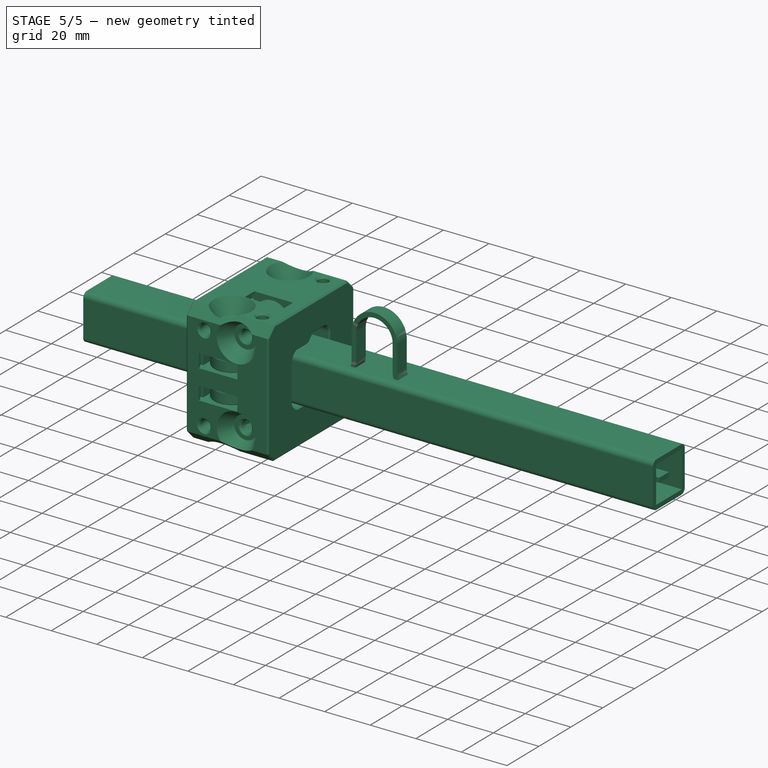
[diagram: stage 5 of 5 — iso view after this stage's code; geometry added in this stage tinted green]
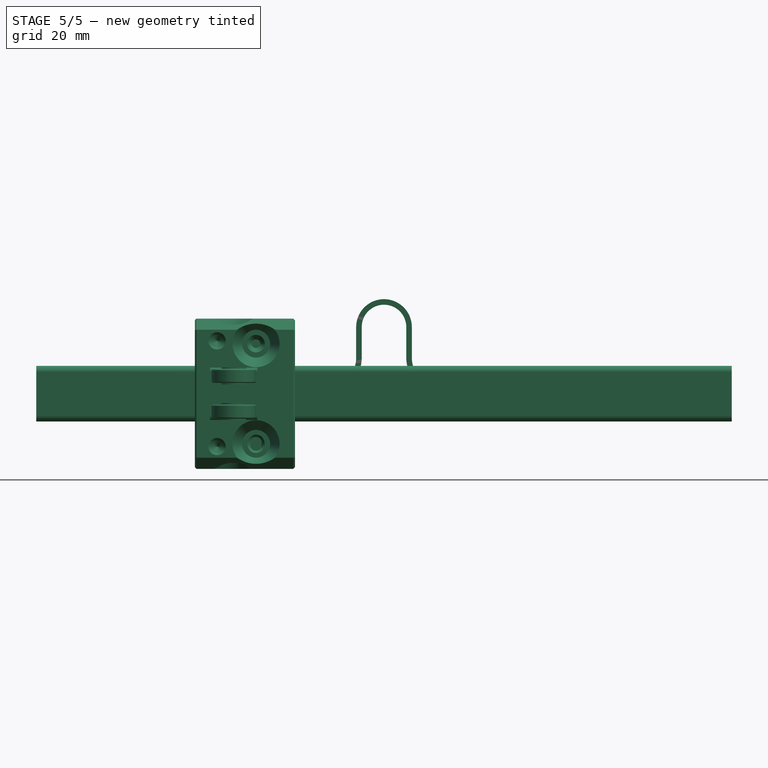
[diagram: stage 5 of 5 — front view after this stage's code; geometry added in this stage tinted green]
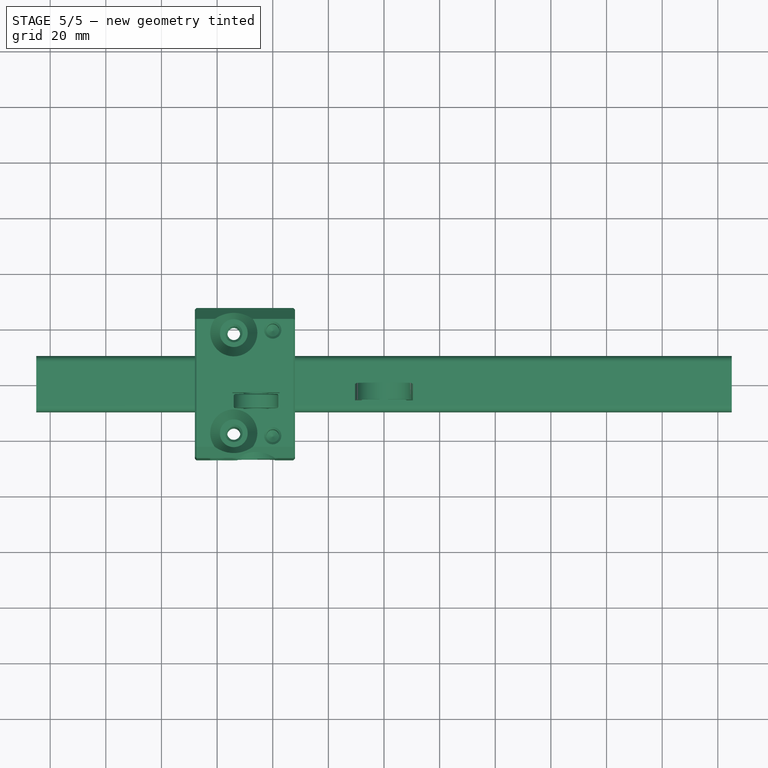
[diagram: stage 5 of 5 — top view after this stage's code; geometry added in this stage tinted green]
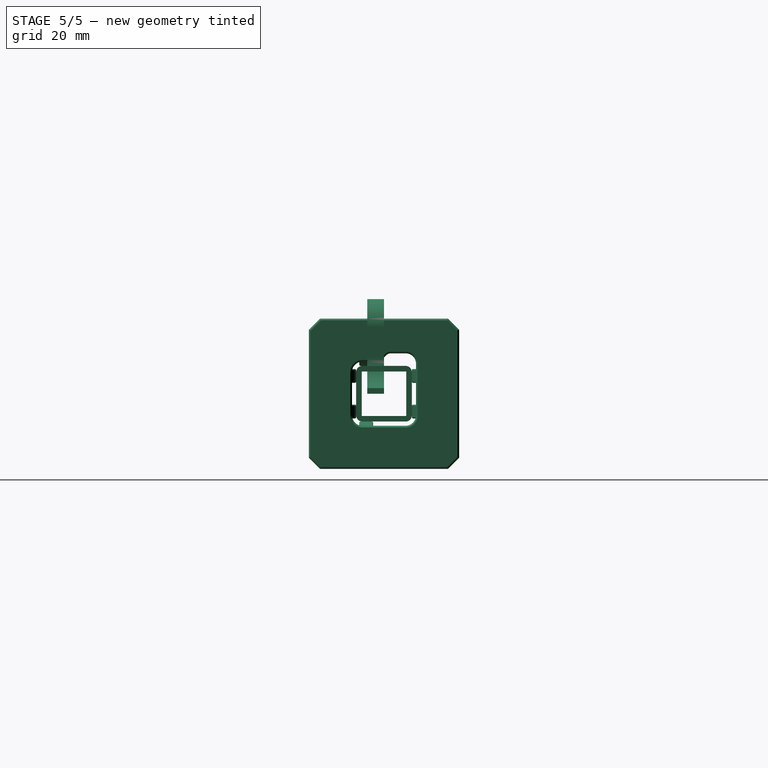
[diagram: stage 5 of 5 — right view after this stage's code; geometry added in this stage tinted green]
FEATURE [App::VarSet] VarSet
  Bearing_axel_screw_oval_hole_depth = 3
  Bearing_axle_screw_diameter = 5
  Bearing_axle_screw_diameter_loose_diamter = 5.5
  Bearing_axle_screw_diameter_oval_selftap_diameter = 4.6
  Bearing_axle_screw_head_pocket_depth = 6
  Bearing_axle_screw_head_pocket_diamter = 10
  Bearing_axle_screw_length = 25
  Bearing_axle_screw_selftap_diameter = 4.7
  Bearing_distance_from_edge = 6
  Bearing_distance_from_fillet = -1.1
  Bearing_id = 5
  Bearing_od = 16
  Bearing_slot_width_margin = 1
  Bearing_tuning_screw_selftap_diameter = 2.6
  Bearing_washer_protrusion = 0.36
  Bearing_width = 5
  Carriage_to_bearing_top_clearance = 1
  Carriage_to_tube_clearance = 1.5
  Drive_chain_slot_height = 4.5
  Drive_chain_slot_width = 10
  Pivot_joint_spacer_thickness = 1.2
  Screw_offset = 3
  Tube_fillet_radius = 2.2
  Tube_height = 20
  Tube_thickness = 2
  Tube_width = 20
  Tuning_range_bearing = 1.8
  expr: Bearing_distance_from_fillet = -1.1
FEATURE [Sketcher::SketchObject] Sketch
  ArcFitTolerance = 1e-06
  AttachmentSupport = -> [YZ_Plane]
  FullyConstrained = true
  MakeInternals = false
  MapMode = 5
  Placement = pos=(0,0,0) rot=(0.57735,0.57735,0.57735;2.0944rad)
  expr: .Constraints.beamheight = VarSet.Tube_height
  expr: .Constraints.beamwidth = VarSet.Tube_width
  sketch-geometry (4):
    g0: LineSegment StartX=-10 StartY=-10 StartZ=0 EndX=10 EndY=-10 EndZ=0
    g1: LineSegment StartX=10 StartY=-10 StartZ=0 EndX=10 EndY=10 EndZ=0
    g2: LineSegment StartX=10 StartY=10 StartZ=0 EndX=-10 EndY=10 EndZ=0
    g3: LineSegment StartX=-10 StartY=10 StartZ=0 EndX=-10 EndY=-10 EndZ=0
  constraints (10):
    c: Horizontal(g2)
    c: Vertical(g3)
    c: Distance(g1,g3) = 20  'beamwidth'
    c: Distance(g0,g2) = 20  'beamheight'
    c: Coincident(g0,g1)
    c: Coincident(g2,g1)
    c: Coincident(g3,g0)
    c: Coincident(g2,g3)
    c: Symmetric(g0,g1,g-1)
    c: Symmetric(g0,g0,g-2)
FEATURE [PartDesign::Pad] Pad
  Direction = (1,0,0)
  Length = 250
  Length2 = 10
  Midplane = true
  Placement = pos=(0,0,0) rot=(1,1,1;2.0944rad)
  Profile = -> Sketch
  ReferenceAxis = -> Sketch [N_Axis]
  Refine = true
  Reversed = true
  Suppressed = false
  Type = 0
FEATURE [PartDesign::Fillet] Fillet
  Base = -> Pad [Edge5,Edge2,Edge8,Edge1]
  BaseFeature = -> Pad
  Placement = pos=(0,0,0) rot=(1,1,1;2.0944rad)
  Radius = 2.2
  Refine = true
  SupportTransform = false
  Suppressed = false
  UseAllEdges = false
  expr: Radius = VarSet.Tube_fillet_radius
FEATURE [PartDesign::Thickness] Thickness
  Base = -> Fillet [Face2,Face5]
  BaseFeature = -> Fillet
  Intersection = false
  Join = 0
  Mode = 0
  Refine = true
  Reversed = true
  SupportTransform = false
  Suppressed = false
  Value = 2
  expr: Value = VarSet.Tube_thickness
FEATURE [Part::FeaturePython] Screw  label="M8x1x40-Screw"  # WARN: FeaturePython — macro-defined, semantics opaque (R4)
  Diameter = 1
  Invert = false
  LeftHanded = false
  Length = 11
  LengthCustom = 40
  MatchOuter = false
  OffsetAngle = 0
  Placement = pos=(-4,-18,67.5) rot=(0,0,1;0rad)
  Thread = false
  Type = 42
  expr: .Placement.Base.x = <<Bearing001>>.Placement.Base.x
  expr: .Placement.Base.y = <<Bearing002>>.Placement.Base.y
FEATURE [Sketcher::SketchObject] Sketch018
  ArcFitTolerance = 1e-06
  AttachmentSupport = -> [XZ_Plane012]
  FullyConstrained = false
  MakeInternals = false
  MapMode = 5
  Placement = pos=(0,0,0) rot=(1,0,0;1.5708rad)
  expr: Constraints[31] = 16
  sketch-geometry (16):
    g0: LineSegment StartX=-125 StartY=0 StartZ=0 EndX=-21 EndY=0 EndZ=0
    g1: LineSegment StartX=21 StartY=0 StartZ=0 EndX=125 EndY=0 EndZ=0
    g2: ArcOfCircle CenterX=-1e-16 CenterY=23.9901 CenterZ=0 NormalX=0 NormalY=0 NormalZ=1 AngleXU=0 Radius=8 StartAngle=0 EndAngle=3.14159
    g3: ArcOfCircle CenterX=-1e-16 CenterY=23.9901 CenterZ=0 NormalX=0 NormalY=0 NormalZ=1 AngleXU=0 Radius=10 StartAngle=0 EndAngle=3.14159
    g4: ArcOfCircle CenterX=-21 CenterY=13 CenterZ=0 NormalX=0 NormalY=0 NormalZ=1 AngleXU=0 Radius=13 StartAngle=4.71239 EndAngle=6.28319
    g5: ArcOfCircle CenterX=21 CenterY=13 CenterZ=0 NormalX=0 NormalY=0 NormalZ=1 AngleXU=0 Radius=13 StartAngle=3.14159 EndAngle=4.71239
    g6: ArcOfCircle CenterX=21 CenterY=13 CenterZ=0 NormalX=0 NormalY=0 NormalZ=1 AngleXU=0 Radius=11 StartAngle=3.14159 EndAngle=4.71239
    g7: ArcOfCircle CenterX=-21 CenterY=13 CenterZ=0 NormalX=0 NormalY=0 NormalZ=1 AngleXU=0 Radius=11 StartAngle=4.71239 EndAngle=6.28319
    g8: LineSegment StartX=-125 StartY=0 StartZ=0 EndX=-125 EndY=2 EndZ=0
    g9: LineSegment StartX=-125 StartY=2 StartZ=0 EndX=-21 EndY=2 EndZ=0
    g10: LineSegment StartX=125 StartY=0 StartZ=0 EndX=125 EndY=2 EndZ=0
    g11: LineSegment StartX=125 StartY=2 StartZ=0 EndX=21 EndY=2 EndZ=0
    g12: LineSegment StartX=-10 StartY=23.9901 StartZ=0 EndX=-10 EndY=13 EndZ=0
    g13: LineSegment StartX=-8 StartY=23.9901 StartZ=0 EndX=-8 EndY=13 EndZ=0
    g14: LineSegment StartX=8 StartY=23.9901 StartZ=0 EndX=8 EndY=13 EndZ=0
    g15: LineSegment StartX=10 StartY=23.9901 StartZ=0 EndX=10 EndY=13 EndZ=0
  constraints (36):
    c: PointOnObject(g0,g-1)
    c: PointOnObject(g0,g-1)
    c: PointOnObject(g1,g-1)
    c: Coincident(g3,g2)
    c: Coincident(g6,g5)
    c: Coincident(g7,g4)
    c: Coincident(g0,g8)
    c: Vertical(g8)
    c: Coincident(g8,g9)
    c: Horizontal(g9)
    c: Coincident(g1,g10)
    c: Vertical(g10)
    c: Coincident(g10,g11)
    c: Horizontal(g11)
    c: Tangent(g1,g5) = -1.5708
    c: Tangent(g6,g11) = 1.5708
    c: Tangent(g5,g14) = -1.5708
    c: Tangent(g15,g6) = -1.5708
    c: Tangent(g15,g3) = 1.5708
    c: Tangent(g14,g2) = 1.5708
    c: Tangent(g4,g0) = -1.5708
    c: Tangent(g7,g9) = -1.5708
    c: Tangent(g7,g12) = 1.5708
    c: Tangent(g4,g13) = 1.5708
    c: Tangent(g13,g2) = -1.5708
    c: Tangent(g12,g3) = -1.5708
    c: Parallel(g12,g13)
    c: Parallel(g14,g15)
    c: Symmetric(g2,g2,g-2)
    c: Vertical(g12)
    c: Distance(g8) = 2
    c: Diameter(g2) = 16
    c: Equal(g7,g6)
    c: Diameter(g7) = 22
    c: Symmetric(g0,g1,g-2)
    c: Distance(g0,g1) = 250
FEATURE [PartDesign::Pad] Pad013
  Direction = (0,-1,2e-16)
  Length = 6
  Length2 = 10
  Placement = pos=(0,0,0) rot=(1,0,0;1.5708rad)
  Profile = -> Sketch018
  ReferenceAxis = -> Sketch018 [N_Axis]
  Refine = true
  Suppressed = false
  Type = 0
FEATURE [PartDesign::Body] Body008  label="Belt"
  AllowCompound = false
  Group = -> [Sketch018,Pad013]
  Origin = -> Origin012
  Placement = pos=(0,7.8,11.5) rot=(0,0,1;0rad)
  Tip = -> Pad013
  expr: .Placement.Base.y = VarSet.Tube_width / 2 - VarSet.Tube_fillet_radius
  expr: .Placement.Base.z = VarSet.Tube_height / 2 + 1.5 mm
FEATURE [Sketcher::SketchObject] Sketch019
  ArcFitTolerance = 1e-06
  AttachmentOffset = pos=(0,-9.1,9) rot=(0,0,1;0rad)
  AttachmentSupport = -> [XZ_Plane013]
  FullyConstrained = true
  MakeInternals = false
  MapMode = 5
  Placement = pos=(0,-9,-9.1) rot=(1,0,0;1.5708rad)
  expr: .AttachmentOffset.Base.y = Sketch016.Constraints.z - VarSet.Bearing_tuning_screw_selftap_diameter
  expr: .AttachmentOffset.Base.z = VarSet.Bearing_od / 2 + VarSet.Carriage_to_bearing_top_clearance
  sketch-geometry (10):
    g0: LineSegment StartX=-1.25 StartY=-12 StartZ=0 EndX=1.25 EndY=-12 EndZ=0
    g1: LineSegment StartX=1.25 StartY=-12 StartZ=0 EndX=1.25 EndY=-3.82843 EndZ=0
    g2: LineSegment StartX=1.25 StartY=-3.82843 StartZ=0 EndX=3.5 EndY=-6.07843 EndZ=0
    g3: LineSegment StartX=3.5 StartY=-6.07843 StartZ=0 EndX=3.5 EndY=-3.25 EndZ=0
    g4: LineSegment StartX=3.5 StartY=-3.25 StartZ=0 EndX=0.25 EndY=-4e-16 EndZ=0
    g5: LineSegment StartX=0.25 StartY=-4e-16 StartZ=0 EndX=-0.25 EndY=0 EndZ=0
    g6: LineSegment StartX=-0.25 StartY=0 StartZ=0 EndX=-3.5 EndY=-3.25 EndZ=0
    g7: LineSegment StartX=-3.5 StartY=-3.25 StartZ=0 EndX=-3.5 EndY=-6.07843 EndZ=0
    g8: LineSegment StartX=-3.5 StartY=-6.07843 StartZ=0 EndX=-1.25 EndY=-3.82843 EndZ=0
    g9: LineSegment StartX=-1.25 StartY=-3.82843 StartZ=0 EndX=-1.25 EndY=-12 EndZ=0
  constraints (26):
    c: Horizontal(g0)
    c: Coincident(g0,g1)
    c: Vertical(g1)
    c: Coincident(g1,g2)
    c: Coincident(g2,g3)
    c: Vertical(g3)
    c: Coincident(g3,g4)
    c: Coincident(g4,g5)
    c: Coincident(g5,g6)
    c: Coincident(g6,g7)
    c: Coincident(g7,g8)
    c: Coincident(g8,g9)
    c: Coincident(g9,g0)
    c: Vertical(g9)
    c: Symmetric(g5,g4,g-2)
    c: Symmetric(g6,g3,g-2)
    c: Symmetric(g8,g1,g-2)
    c: Symmetric(g7,g2,g-2)
    c: Distance(g5) = 0.5
    c: Parallel(g8,g6)
    c: Distance(g8,g6) = 2
    c: Distance(g0) = 2.5
    c: Angle(g8,g9) = 0.785398
    c: Distance(g7,g2) = 7
    c: PointOnObject(g4,g-1)
    c: DistanceY(g-1,g0) = -12
FEATURE [PartDesign::Pad] Pad014
  Direction = (0,-1,2e-16)
  Length = 0.5
  Length2 = 10
  Placement = pos=(0,0,0) rot=(1,0,0;1.5708rad)
  Profile = -> Sketch019
  ReferenceAxis = -> Sketch019 [N_Axis]
  Refine = true
  Reversed = true
  Suppressed = false
  Type = 0
FEATURE [PartDesign::Body] Body009  label="Tuning arrow"
  AllowCompound = false
  Group = -> [Sketch019,Pad014]
  Origin = -> Origin013
  Tip = -> Pad014
FEATURE [Part::FeaturePython] Clone013  label="Clone - Tuning arrow - for Bearing 003"  # Draft clone (typed FeaturePython)
  AttacherType = Attacher::AttachEngine3D
  Fuse = false
  Objects = -> [Body009]
  Placement = pos=(-4,18,-6.4) rot=(1,0,0;3.14159rad)
  Scale = (1,1,1)
  expr: .Placement.Base.x = <<Bearing003>>.Placement.Base.x
  expr: .Placement.Base.y = <<Bearing003>>.Placement.Base.y
  expr: .Placement.Base.z = <<Bearing003>>.Placement.Base.z
FEATURE [Part::FeaturePython] Clone014  label="Clone - Tuning arrow - for Bearing 004"  # Draft clone (typed FeaturePython)
  AttacherType = Attacher::AttachEngine3D
  Fuse = false
  Objects = -> [Body009]
  Placement = pos=(-4,18,6.4) rot=(0,0,1;3.14159rad)
  Scale = (1,1,1)
  expr: .Placement.Base.x = <<Bearing004>>.Placement.Base.x
  expr: .Placement.Base.y = <<Bearing004>>.Placement.Base.y
  expr: .Placement.Base.z = <<Bearing004>>.Placement.Base.z
FEATURE [Part::FeaturePython] Clone015  label="Clone - Tuning arrow - for Bearing 005"  # Draft clone (typed FeaturePython)
  AttacherType = Attacher::AttachEngine3D
  Fuse = false
  Objects = -> [Body009]
  Placement = pos=(4,-6.4,-18) rot=(1,0,0;1.5708rad)
  Scale = (1,1,1)
  expr: .Placement.Base.x = <<Bearing005>>.Placement.Base.x
  expr: .Placement.Base.y = <<Bearing005>>.Placement.Base.y
  expr: .Placement.Base.z = <<Bearing005>>.Placement.Base.z
FEATURE [PartDesign::Chamfer] Chamfer014
  Angle = 45
  Base = -> Hole001 [Edge139,Edge138]
  BaseFeature = -> Hole001
  ChamferType = 0
  FlipDirection = false
  Refine = true
  Size = 0.8
  Size2 = 1
  SupportTransform = false
  Suppressed = false
  UseAllEdges = false
FEATURE [PartDesign::Mirrored] Mirrored001
  BaseFeature = -> Chamfer014
  MirrorPlane = -> XY_Plane016
  Originals = -> [Hole001,Chamfer014]
  Refine = true
  Suppressed = false
  TransformMode = 0
FEATURE [PartDesign::Body] Body011  label="Bearing ring - with chamfers and booleans"
  AllowCompound = false
  BaseFeature = -> Cut
  Group = -> [BaseFeature,Sketch021,Hole,Chamfer013,Mirrored,Sketch022,Hole001,Chamfer014,Mirrored001]
  Origin = -> Origin016
  Tip = -> Mirrored001
FEATURE [App::Part] Part  label="Bearing ring 1"
  Group = -> [Part001,Screw,Clone013,Clone015,Clone014,Clone006,Body002,Clone009,Clone010,Clone011,Clone012,Clone008,Cut,Fusion002,Fusion,Body011]
  Origin = -> Origin015
  Placement = pos=(50,0,0) rot=(0,0,1;0rad)
FEATURE [Part::FeaturePython] Clone016  label="Bearing ring 2"  # Draft clone (typed FeaturePython)
  AttacherType = Attacher::AttachEngine3D
  Fuse = false
  Objects = -> [Part]
  Placement = pos=(-50,0,0) rot=(0,0,1;0rad)
  Scale = (1,1,1)
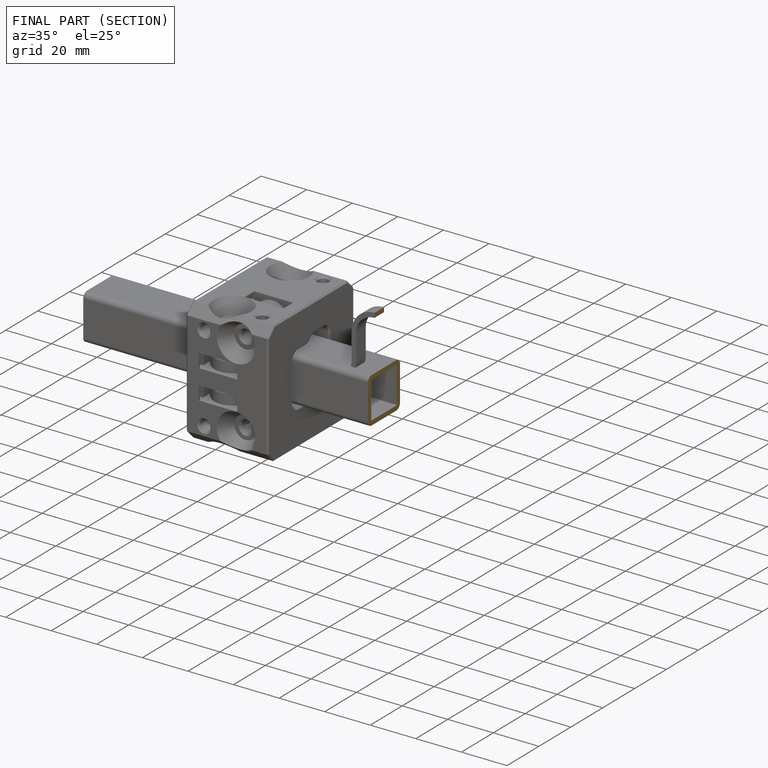
[diagram: finished part — half-section view (interior)]
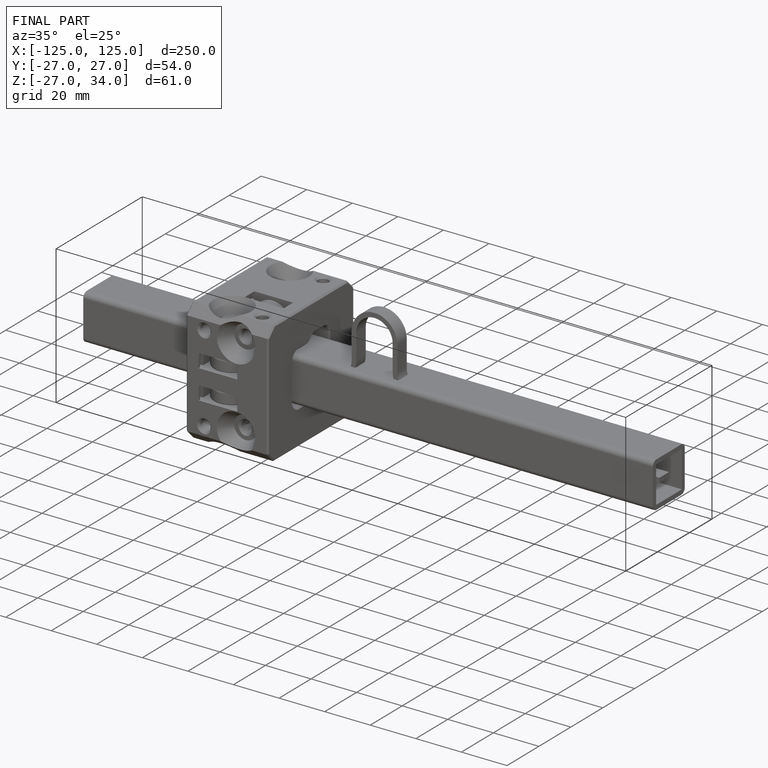
[diagram: finished part — iso view with bounding-box wireframe]
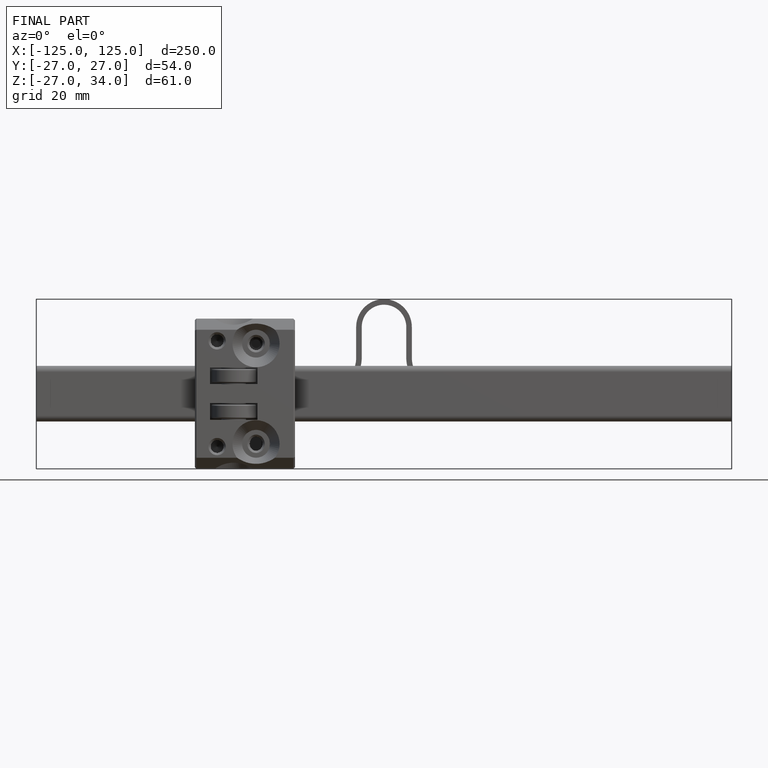
[diagram: finished part — front view with bounding-box wireframe]
